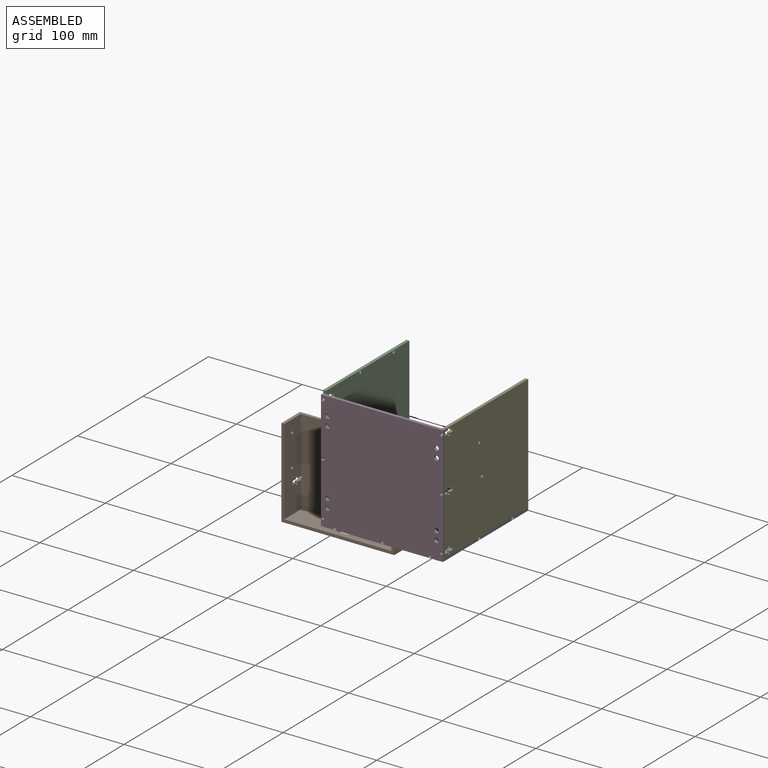
[diagram: assembled view]
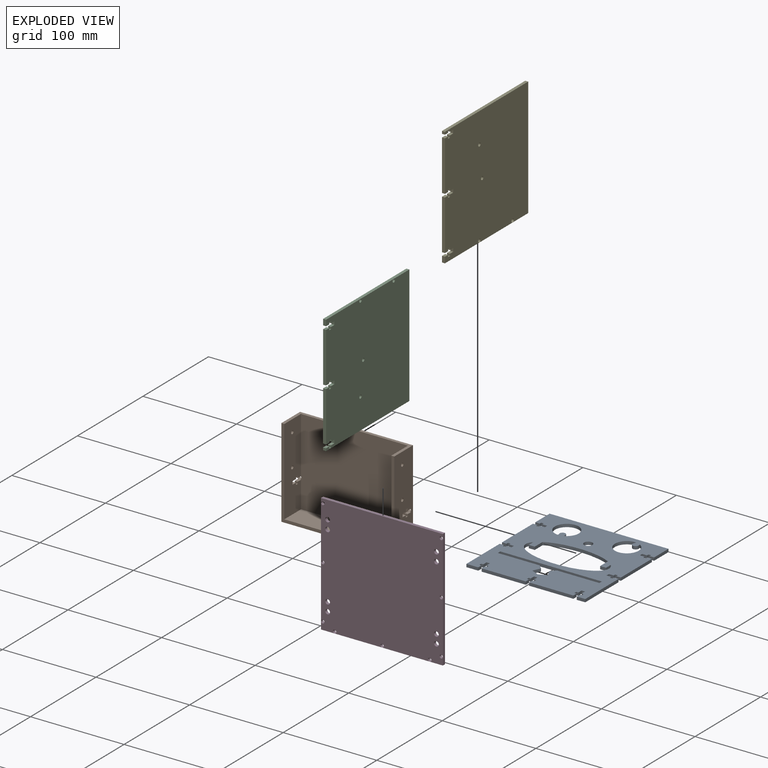
[diagram: exploded view]
GUIDED TOUR — MATED ASSEMBLY WITH SUBASSEMBLIES (Onshape document f5c955dc423d630a37467125, AutoMate assembly f5c955dc423d630a37467125_b046f50d886893bcf47895f5_0e2b2fad7b4f0885c0d2d234_default)

This assembly has 8 component occurrences arranged in 5 top-level units: 4 individual components plus 1 subassembly (S0). The tour has two levels: first the top level, where each subassembly is treated as one rigid unit; then each subassembly is toured internally in its own section (nesting deeper than one subassembly level is flattened into its subassembly's section).

Components are labeled P0..P7 across the whole record; subassembly units are labeled S0..S0. A mate is a constraint between two units; its type names the relative motion it leaves free:
  PLANAR — leaves sliding in the plane through the listed point (normal = the listed direction) and rotation about that normal free.
Axis/direction vectors are unit vectors and 'through' points are millimeter coordinates, both in the assembly's world frame.

TOP-LEVEL MATES (between units; each subassembly's internal mates are listed in its own section)
  1. PLANAR "Planar 6": P6 <-> P4, direction (0.000, 0.000, 1.000) through (39.11, 52.27, 65.40) mm
  2. PLANAR "Planar 4": P6 <-> P4, direction (1.000, 0.000, 0.000) through (40.69, 52.88, 1.94) mm
  3. PLANAR "Planar 2": P0 <-> P4, direction (1.000, 0.000, 0.000) through (40.69, 14.17, -60.01) mm
  4. PLANAR "Planar 7": P3 <-> P0, direction (0.000, 0.000, -1.000) through (-87.89, 52.27, -58.42) mm
  5. PLANAR "Planar 1": P0 <-> P4, direction (0.000, 0.000, -1.000) through (4.37, -11.23, -61.60) mm
  6. PLANAR "Planar 9": P3 <-> P0, direction (0.000, 1.000, 0.000) through (-87.89, 115.77, 5.08) mm
  7. PLANAR "Planar 8": P3 <-> P4, direction (-1.000, 0.000, 0.000) through (-89.48, 52.88, 5.04) mm
  8. PLANAR "Planar 3": P0 <-> P4, direction (0.000, -1.000, 0.000) through (4.37, -11.23, -60.01) mm
  9. PLANAR "Planar 5": P6 <-> P0, direction (0.000, 1.000, 0.000) through (39.11, 115.77, 1.90) mm

TOP-LEVEL ASSEMBLY ORDER
  1. S0 — the base component [order verified]
  2. P3 [order verified]
  3. P4 [order verified]
  4. P6 [order verified]
  5. P0 [order verified]
Order-tag legend:
  [order verified] — this step's position reverses a verified removal order: the component was checked to insert without passing through the ones already placed.

Of the 8 component occurrences, 8 carry the full construction recipe — the FeatureScript program that regenerates the part's solid from scratch; the rest are supplied as boundary geometry only. Each toured unit is shown spotlighted twice — assembled, then exploded with a leader line back to its socket (green = recipe-attached component, orange = geometry-only, blue = subassembly unit; the rest desaturated gray).
NOTE — this tour is split across 2 documents so each fits a 32k-token context. This is document 1: the component sections continue in the remaining 1 document, each repeating the header above.
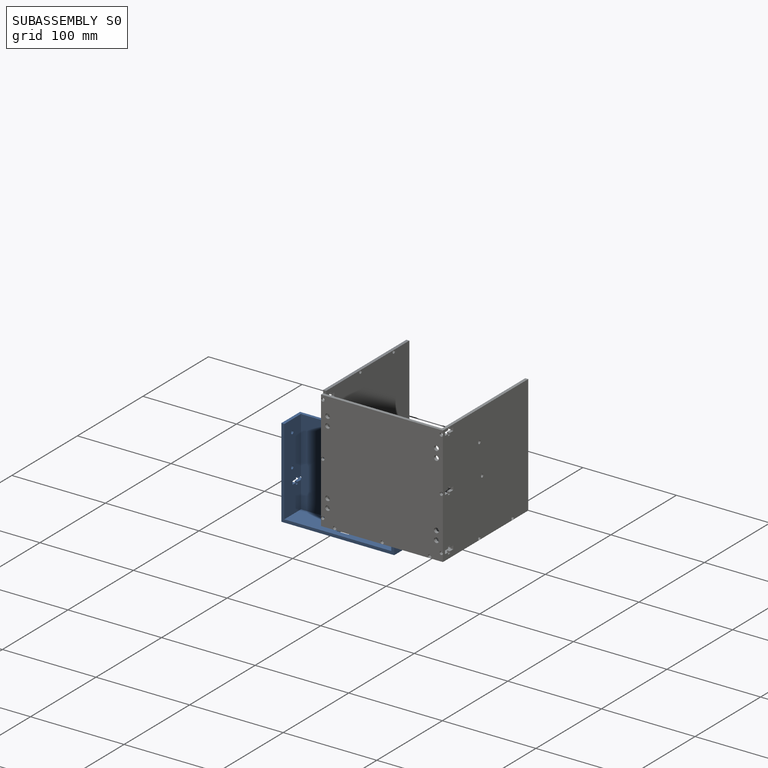
[diagram: subassembly S0 — assembled]
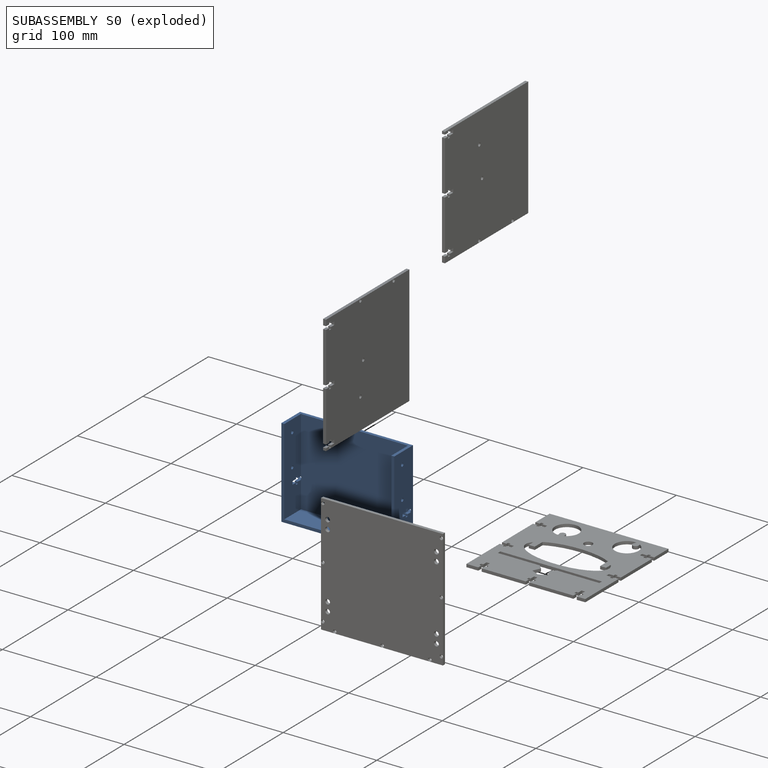
[diagram: subassembly S0 — exploded]
SUBASSEMBLY S0 — 4 components (P1, P2, P5, P7), of which 4 recipe-attached; toured below.
Held by: no mates (free).
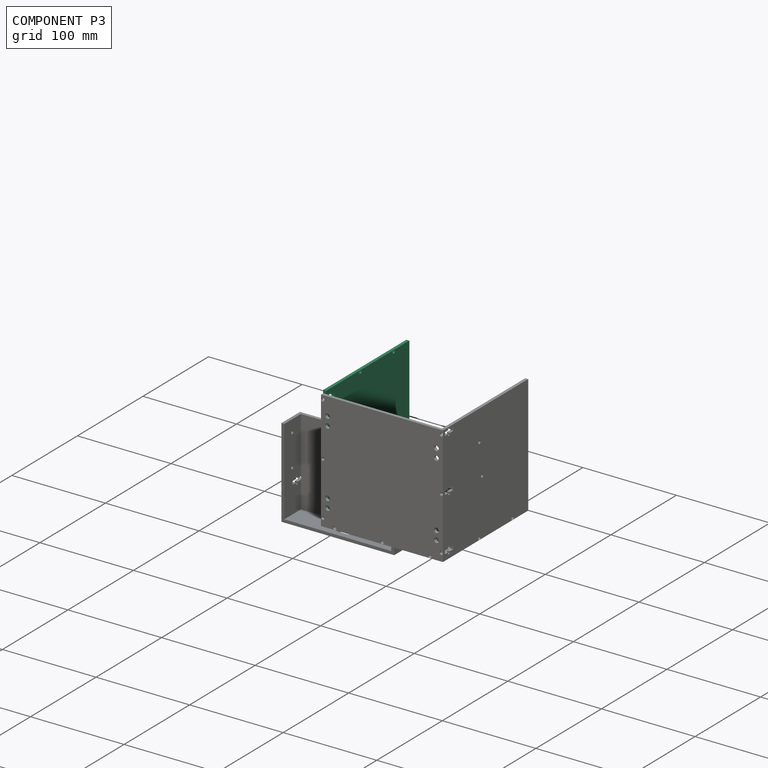
[diagram: component P3 — assembled]
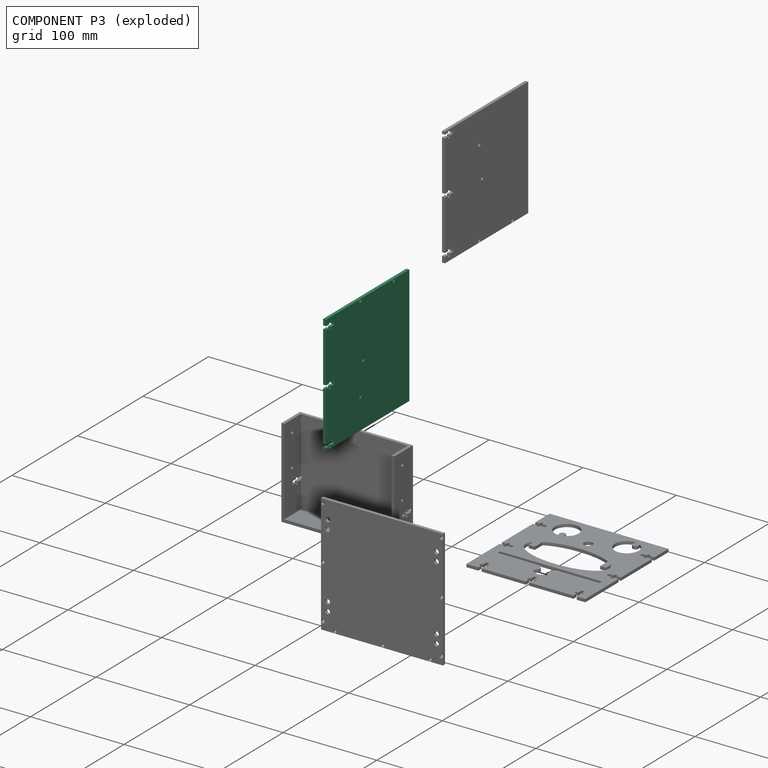
[diagram: component P3 — exploded]
COMPONENT P3 — recipe-attached (CADFS 00168640, mesh-verified: the recipe's output STEP matches this component's geometry to below the mesh-comparison resolution (tessellation chordal tolerance ~0.269 mm)).
Held by: PLANAR mate "Planar 7" to P0; PLANAR mate "Planar 9" to P0; PLANAR mate "Planar 8" to P4.
Construction recipe (FeatureScript — the CAD program that rebuilds this solid; sketch coordinates are in the units given by the * unit suffixes, e.g. mm):

FeatureScript 1511;
import(path : "onshape/std/geometry.fs", version : "1511.0");
import(path : "onshape/std/common.fs", version : "1511.0");
const mm = millimeter;
const VERTEX = EntityType.VERTEX;
const EDGE = EntityType.EDGE;
const FACE = EntityType.FACE;
const BODY = EntityType.BODY;
function v(x, y){return vector(x, y);}
function OD(order){return orderDisambiguation(order);}
function OSD(set){return originalSetDisambiguation(set);}
function TD(topology){return topologyDisambiguation(topology);}
function TDD(query){return trueDependencyDisambiguation(query);}
function sQuery(a, b, c) {return sketchEntityQuery(a, b, c);}

annotation { "Feature Type Name" : "Feature", "Feature Type Description" : "" }
export const myFeature = defineFeature(function(context is Context, id is Id, definition is map)
    precondition{}
    {
        {
            var Q0;
            Q0=qCreatedBy(makeId("Front.planeOp"),FACE);
            var sketch = newSketch(context, id + "F0", { "sketchPlane" : qUnion([Q0])});
            skLineSegment(sketch, "E0.bottom", {"start": v(63.5, -63.5) * mm, "end": v(-63.5, -63.5) * mm});
            skLineSegment(sketch, "E0.top", {"start": v(63.5, 63.5) * mm, "end": v(-63.5, 63.5) * mm});
            skLineSegment(sketch, "E0.left", {"start": v(63.5, -63.5) * mm, "end": v(63.5, 63.5) * mm});
            skLineSegment(sketch, "E0.right", {"start": v(-63.5, -63.5) * mm, "end": v(-63.5, 63.5) * mm});
            skPoint(sketch, "E0.middle", {"position": v(0, 0) * mm});
            skLineSegment(sketch, "E1", {"start": v(-57.15, -63.5) * mm, "end": v(-57.15, -58.66) * mm});
            skLineSegment(sketch, "E2", {"start": v(-57.15, -58.66) * mm, "end": v(-59.34, -58.66) * mm});
            skLineSegment(sketch, "E3", {"start": v(-59.34, -58.66) * mm, "end": v(-59.34, -55.88) * mm});
            skLineSegment(sketch, "E4", {"start": v(-59.34, -55.88) * mm, "end": v(-57.15, -55.88) * mm});
            skLineSegment(sketch, "E5", {"start": v(-57.15, -55.88) * mm, "end": v(-57.15, -50.8) * mm});
            skLineSegment(sketch, "E6", {"start": v(-57.15, -50.8) * mm, "end": v(-53.6, -50.8) * mm});
            skLineSegment(sketch, "E7", {"start": v(-53.6, -50.8) * mm, "end": v(-53.6, -55.88) * mm});
            skLineSegment(sketch, "E8", {"start": v(-53.6, -55.88) * mm, "end": v(-51.4, -55.88) * mm});
            skLineSegment(sketch, "E9", {"start": v(-51.4, -55.88) * mm, "end": v(-51.4, -58.66) * mm});
            skLineSegment(sketch, "E10", {"start": v(-51.4, -58.66) * mm, "end": v(-53.6, -58.66) * mm});
            skLineSegment(sketch, "E11", {"start": v(-53.6, -58.66) * mm, "end": v(-53.6, -63.5) * mm});
            skLineSegment(sketch, "E12.1.0.0", {"start": v(-2.2, -58.66) * mm, "end": v(-2.2, -55.88) * mm});
            skLineSegment(sketch, "E12.1.0.1", {"start": v(5.75, -58.66) * mm, "end": v(3.56, -58.66) * mm});
            skLineSegment(sketch, "E12.1.0.2", {"start": v(-2.2, -55.88) * mm, "end": v(0, -55.88) * mm});
            skLineSegment(sketch, "E12.1.0.3", {"start": v(0, -55.88) * mm, "end": v(0, -50.8) * mm});
            skLineSegment(sketch, "E12.1.0.4", {"start": v(0, -50.8) * mm, "end": v(3.56, -50.8) * mm});
            skLineSegment(sketch, "E12.1.0.5", {"start": v(0, -58.66) * mm, "end": v(-2.2, -58.66) * mm});
            skLineSegment(sketch, "E12.1.0.6", {"start": v(3.56, -50.8) * mm, "end": v(3.56, -55.88) * mm});
            skLineSegment(sketch, "E12.1.0.7", {"start": v(0, -63.5) * mm, "end": v(0, -58.66) * mm});
            skLineSegment(sketch, "E12.1.0.8", {"start": v(3.56, -55.88) * mm, "end": v(5.75, -55.88) * mm});
            skLineSegment(sketch, "E12.1.0.9", {"start": v(5.75, -55.88) * mm, "end": v(5.75, -58.66) * mm});
            skLineSegment(sketch, "E12.1.0.10", {"start": v(3.56, -58.66) * mm, "end": v(3.56, -63.5) * mm});
            skLineSegment(sketch, "E12.2.0.0", {"start": v(54.96, -58.66) * mm, "end": v(54.96, -55.88) * mm});
            skLineSegment(sketch, "E12.2.0.1", {"start": v(62.9, -58.66) * mm, "end": v(60.7, -58.66) * mm});
            skLineSegment(sketch, "E12.2.0.2", {"start": v(54.96, -55.88) * mm, "end": v(57.15, -55.88) * mm});
            skLineSegment(sketch, "E12.2.0.3", {"start": v(57.15, -55.88) * mm, "end": v(57.15, -50.8) * mm});
            skLineSegment(sketch, "E12.2.0.4", {"start": v(57.15, -50.8) * mm, "end": v(60.7, -50.8) * mm});
            skLineSegment(sketch, "E12.2.0.5", {"start": v(57.15, -58.66) * mm, "end": v(54.96, -58.66) * mm});
            skLineSegment(sketch, "E12.2.0.6", {"start": v(60.7, -50.8) * mm, "end": v(60.7, -55.88) * mm});
            skLineSegment(sketch, "E12.2.0.7", {"start": v(57.15, -63.5) * mm, "end": v(57.15, -58.66) * mm});
            skLineSegment(sketch, "E12.2.0.8", {"start": v(60.7, -55.88) * mm, "end": v(62.9, -55.88) * mm});
            skLineSegment(sketch, "E12.2.0.9", {"start": v(62.9, -55.88) * mm, "end": v(62.9, -58.66) * mm});
            skLineSegment(sketch, "E12.2.0.10", {"start": v(60.7, -58.66) * mm, "end": v(60.7, -63.5) * mm});
            skLineSegment(sketch, "E12.direction1", {"start": v(-57.15, -63.5) * mm, "end": v(0, -63.5) * mm, "construction": true});
            skCircle(sketch, "E13", {"center": v(30.99, -10.92) * mm, "radius": 1.78 * mm});
            skCircle(sketch, "E14", {"center": v(-3, -6.75) * mm, "radius": 1.78 * mm});
            skSolve(sketch);
        }
        {
            var Q0;
            Q0=makeQuery(id+"F0.imprint","IMPRINT",FACE,{"disambiguationData":[TD([[makeQuery(id+"F0.imprint","IMPRINT",EDGE,{"derivedFrom":sQuery(id+"F0.wireOp",EDGE,"E0.top")}),1.0]])]});
            extrude(context, id + "F1", {"entities" : qUnion([Q0]), "endBound" : BoundingType.SYMMETRIC, "depth" : 3.17 * mm});
        }
        {
            var Q0;
            Q0=makeQuery(id+"F1.opExtrude","CAP_FACE",FACE,{"disambiguationData":[OSD([sQuery(id+"F0.wireOp",EDGE,"E0.bottom"),sQuery(id+"F0.wireOp",EDGE,"E0.top"),sQuery(id+"F0.wireOp",EDGE,"E0.left"),sQuery(id+"F0.wireOp",EDGE,"E0.right"),sQuery(id+"F0.wireOp",EDGE,"E1"),sQuery(id+"F0.wireOp",EDGE,"E2"),sQuery(id+"F0.wireOp",EDGE,"E3"),sQuery(id+"F0.wireOp",EDGE,"E4"),sQuery(id+"F0.wireOp",EDGE,"E5"),sQuery(id+"F0.wireOp",EDGE,"E6"),sQuery(id+"F0.wireOp",EDGE,"E7"),sQuery(id+"F0.wireOp",EDGE,"E8"),sQuery(id+"F0.wireOp",EDGE,"E9"),sQuery(id+"F0.wireOp",EDGE,"E10"),sQuery(id+"F0.wireOp",EDGE,"E11"),sQuery(id+"F0.wireOp",EDGE,"E12.1.0.0"),sQuery(id+"F0.wireOp",EDGE,"E12.1.0.1"),sQuery(id+"F0.wireOp",EDGE,"E12.1.0.2"),sQuery(id+"F0.wireOp",EDGE,"E12.1.0.3"),sQuery(id+"F0.wireOp",EDGE,"E12.1.0.4"),sQuery(id+"F0.wireOp",EDGE,"E12.1.0.5"),sQuery(id+"F0.wireOp",EDGE,"E12.1.0.6"),sQuery(id+"F0.wireOp",EDGE,"E12.1.0.7"),sQuery(id+"F0.wireOp",EDGE,"E12.1.0.8"),sQuery(id+"F0.wireOp",EDGE,"E12.1.0.9"),sQuery(id+"F0.wireOp",EDGE,"E12.1.0.10"),sQuery(id+"F0.wireOp",EDGE,"E12.2.0.0"),sQuery(id+"F0.wireOp",EDGE,"E12.2.0.1"),sQuery(id+"F0.wireOp",EDGE,"E12.2.0.2"),sQuery(id+"F0.wireOp",EDGE,"E12.2.0.3"),sQuery(id+"F0.wireOp",EDGE,"E12.2.0.4"),sQuery(id+"F0.wireOp",EDGE,"E12.2.0.5"),sQuery(id+"F0.wireOp",EDGE,"E12.2.0.6"),sQuery(id+"F0.wireOp",EDGE,"E12.2.0.7"),sQuery(id+"F0.wireOp",EDGE,"E12.2.0.8"),sQuery(id+"F0.wireOp",EDGE,"E12.2.0.9"),sQuery(id+"F0.wireOp",EDGE,"E12.2.0.10"),sQuery(id+"F0.wireOp",EDGE,"E13"),sQuery(id+"F0.wireOp",EDGE,"E14")])],"isStart":false});
            var sketch = newSketch(context, id + "F2", { "sketchPlane" : qUnion([Q0])});
            skCircle(sketch, "E15", {"center": v(-61.72, -10.92) * mm, "radius": 1.78 * mm});
            skCircle(sketch, "E16.0.1.0", {"center": v(-61.72, 39.88) * mm, "radius": 1.78 * mm});
            skLineSegment(sketch, "E16.direction1", {"start": v(-61.72, -10.92) * mm, "end": v(-36.32, -10.92) * mm, "construction": true});
            skLineSegment(sketch, "E16.direction2", {"start": v(-61.72, -10.92) * mm, "end": v(-61.72, 39.88) * mm, "construction": true});
            skSolve(sketch);
        }
        {
            var Q0;
            Q0=sQuery(id+"F2.wireOp",VERTEX,"E16.0.1.0.center");
            var Q1;
            Q1=sQuery(id+"F2.wireOp",VERTEX,"E15.center");
            var Q2;
            Q2=makeQuery(id+"F1.opExtrude","SWEPT_BODY",BODY,{"disambiguationData":[OSD([sQuery(id+"F0.wireOp",EDGE,"E0.bottom"),sQuery(id+"F0.wireOp",EDGE,"E0.top"),sQuery(id+"F0.wireOp",EDGE,"E0.left"),sQuery(id+"F0.wireOp",EDGE,"E0.right"),sQuery(id+"F0.wireOp",EDGE,"E1"),sQuery(id+"F0.wireOp",EDGE,"E2"),sQuery(id+"F0.wireOp",EDGE,"E3"),sQuery(id+"F0.wireOp",EDGE,"E4"),sQuery(id+"F0.wireOp",EDGE,"E5"),sQuery(id+"F0.wireOp",EDGE,"E6"),sQuery(id+"F0.wireOp",EDGE,"E7"),sQuery(id+"F0.wireOp",EDGE,"E8"),sQuery(id+"F0.wireOp",EDGE,"E9"),sQuery(id+"F0.wireOp",EDGE,"E10"),sQuery(id+"F0.wireOp",EDGE,"E11"),sQuery(id+"F0.wireOp",EDGE,"E12.1.0.0"),sQuery(id+"F0.wireOp",EDGE,"E12.1.0.1"),sQuery(id+"F0.wireOp",EDGE,"E12.1.0.2"),sQuery(id+"F0.wireOp",EDGE,"E12.1.0.3"),sQuery(id+"F0.wireOp",EDGE,"E12.1.0.4"),sQuery(id+"F0.wireOp",EDGE,"E12.1.0.5"),sQuery(id+"F0.wireOp",EDGE,"E12.1.0.6"),sQuery(id+"F0.wireOp",EDGE,"E12.1.0.7"),sQuery(id+"F0.wireOp",EDGE,"E12.1.0.8"),sQuery(id+"F0.wireOp",EDGE,"E12.1.0.9"),sQuery(id+"F0.wireOp",EDGE,"E12.1.0.10"),sQuery(id+"F0.wireOp",EDGE,"E12.2.0.0"),sQuery(id+"F0.wireOp",EDGE,"E12.2.0.1"),sQuery(id+"F0.wireOp",EDGE,"E12.2.0.2"),sQuery(id+"F0.wireOp",EDGE,"E12.2.0.3"),sQuery(id+"F0.wireOp",EDGE,"E12.2.0.4"),sQuery(id+"F0.wireOp",EDGE,"E12.2.0.5"),sQuery(id+"F0.wireOp",EDGE,"E12.2.0.6"),sQuery(id+"F0.wireOp",EDGE,"E12.2.0.7"),sQuery(id+"F0.wireOp",EDGE,"E12.2.0.8"),sQuery(id+"F0.wireOp",EDGE,"E12.2.0.9"),sQuery(id+"F0.wireOp",EDGE,"E12.2.0.10"),sQuery(id+"F0.wireOp",EDGE,"E13"),sQuery(id+"F0.wireOp",EDGE,"E14")])]});
            hole(context, id + "F3", {"style" : HoleStyle.SIMPLE, "endStyle" : HoleEndStyle.THROUGH, "holeDiameter" : 3.56 * mm, "locations" : qUnion([Q0, Q1]), "scope" : qUnion([Q2]), "isTappedThrough" : true});
        }
    });
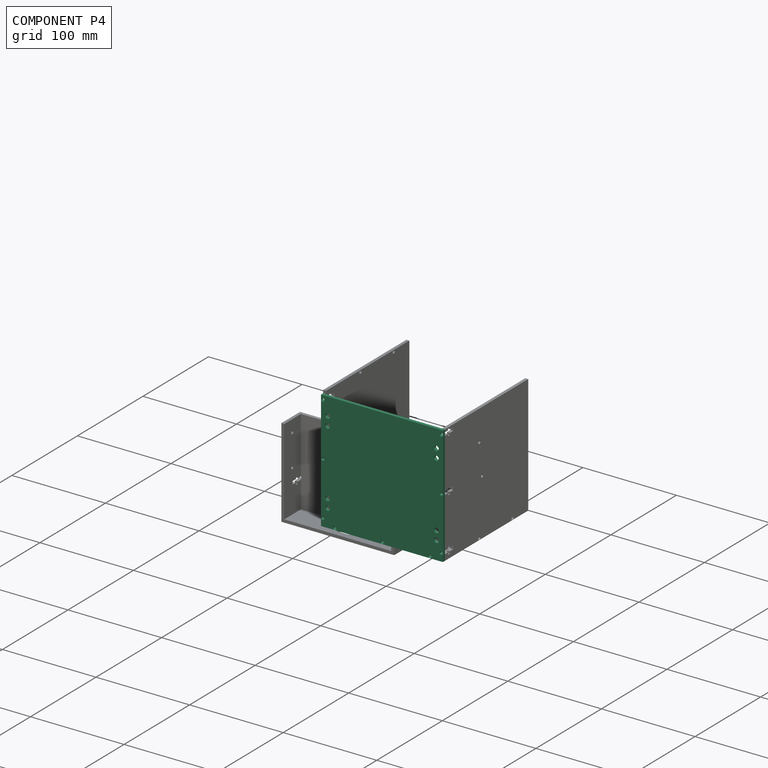
[diagram: component P4 — assembled]
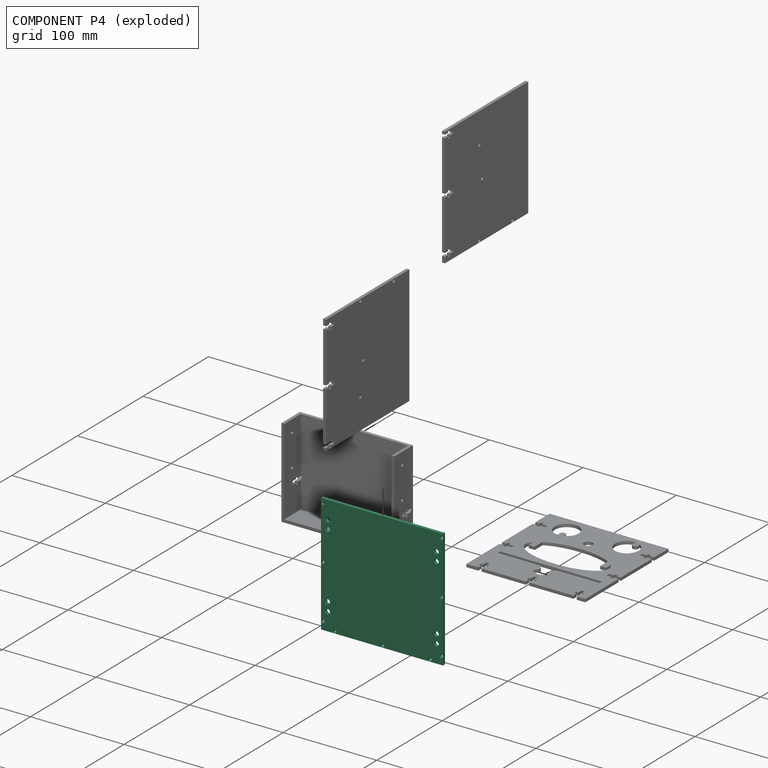
[diagram: component P4 — exploded]
COMPONENT P4 — recipe-attached (CADFS 00168639, mesh-verified: the recipe's output STEP matches this component's geometry to below the mesh-comparison resolution (tessellation chordal tolerance ~0.273 mm)).
Held by: PLANAR mate "Planar 6" to P6; PLANAR mate "Planar 4" to P6; PLANAR mate "Planar 2" to P0; PLANAR mate "Planar 1" to P0; PLANAR mate "Planar 8" to P3; PLANAR mate "Planar 3" to P0.
Construction recipe (FeatureScript — the CAD program that rebuilds this solid; sketch coordinates are in the units given by the * unit suffixes, e.g. mm):

FeatureScript 1511;
import(path : "onshape/std/geometry.fs", version : "1511.0");
import(path : "onshape/std/common.fs", version : "1511.0");
const mm = millimeter;
const VERTEX = EntityType.VERTEX;
const EDGE = EntityType.EDGE;
const FACE = EntityType.FACE;
const BODY = EntityType.BODY;
function v(x, y){return vector(x, y);}
function OD(order){return orderDisambiguation(order);}
function OSD(set){return originalSetDisambiguation(set);}
function TD(topology){return topologyDisambiguation(topology);}
function TDD(query){return trueDependencyDisambiguation(query);}
function sQuery(a, b, c) {return sketchEntityQuery(a, b, c);}

annotation { "Feature Type Name" : "Feature", "Feature Type Description" : "" }
export const myFeature = defineFeature(function(context is Context, id is Id, definition is map)
    precondition{}
    {
        {
            var Q0;
            Q0=qCreatedBy(makeId("Front.planeOp"),FACE);
            var sketch = newSketch(context, id + "F0", { "sketchPlane" : qUnion([Q0])});
            skLineSegment(sketch, "E0.bottom", {"start": v(65.09, -63.5) * mm, "end": v(-65.09, -63.5) * mm});
            skLineSegment(sketch, "E0.top", {"start": v(65.09, 63.5) * mm, "end": v(-65.09, 63.5) * mm});
            skLineSegment(sketch, "E0.left", {"start": v(65.09, -63.5) * mm, "end": v(65.09, 63.5) * mm});
            skLineSegment(sketch, "E0.right", {"start": v(-65.09, -63.5) * mm, "end": v(-65.09, 63.5) * mm});
            skPoint(sketch, "E0.middle", {"position": v(0, 0) * mm});
            skCircle(sketch, "E1", {"center": v(-58.1, 34.92) * mm, "radius": 2.54 * mm});
            skCircle(sketch, "E2", {"center": v(-58.1, 44.45) * mm, "radius": 2.54 * mm});
            skCircle(sketch, "E3.MirrorC", {"center": v(-58.1, -34.92) * mm, "radius": 2.54 * mm});
            skCircle(sketch, "E4.MirrorC", {"center": v(-58.1, -44.45) * mm, "radius": 2.54 * mm});
            skCircle(sketch, "E5.MirrorC", {"center": v(58.1, 44.45) * mm, "radius": 2.54 * mm});
            skCircle(sketch, "E6.MirrorC", {"center": v(58.1, 34.92) * mm, "radius": 2.54 * mm});
            skCircle(sketch, "E7.MirrorC", {"center": v(58.1, -34.92) * mm, "radius": 2.54 * mm});
            skCircle(sketch, "E8.MirrorC", {"center": v(58.1, -44.45) * mm, "radius": 2.54 * mm});
            skSolve(sketch);
        }
        {
            var Q0;
            {var subQ3=sQuery(id+"F0.wireOp",EDGE,"E0.top");Q0=makeQuery(id+"F0.imprint","IMPRINT",FACE,{"disambiguationData":[TD([[makeQuery(id+"F0.imprint","IMPRINT",EDGE,{"derivedFrom":subQ3}),1.0]])]});}
            extrude(context, id + "F1", {"entities" : qUnion([Q0]), "endBound" : BoundingType.SYMMETRIC, "depth" : 3.17 * mm});
        }
        {
            var Q0;
            Q0=makeQuery(id+"F1.opExtrude","CAP_FACE",FACE,{"disambiguationData":[OSD([sQuery(id+"F0.wireOp",EDGE,"E0.bottom"),sQuery(id+"F0.wireOp",EDGE,"E0.top"),sQuery(id+"F0.wireOp",EDGE,"E0.left"),sQuery(id+"F0.wireOp",EDGE,"E0.right"),sQuery(id+"F0.wireOp",EDGE,"E1"),sQuery(id+"F0.wireOp",EDGE,"E2"),sQuery(id+"F0.wireOp",EDGE,"E3.MirrorC"),sQuery(id+"F0.wireOp",EDGE,"E4.MirrorC"),sQuery(id+"F0.wireOp",EDGE,"E5.MirrorC"),sQuery(id+"F0.wireOp",EDGE,"E6.MirrorC"),sQuery(id+"F0.wireOp",EDGE,"E7.MirrorC"),sQuery(id+"F0.wireOp",EDGE,"E8.MirrorC")])],"isStart":false});
            var sketch = newSketch(context, id + "F2", { "sketchPlane" : qUnion([Q0])});
            skCircle(sketch, "E9", {"center": v(-63.3, -55.37) * mm, "radius": 1.78 * mm});
            skCircle(sketch, "E10.0.1.0", {"center": v(-63.3, 1.78) * mm, "radius": 1.78 * mm});
            skCircle(sketch, "E10.0.2.0", {"center": v(-63.3, 58.93) * mm, "radius": 1.78 * mm});
            skLineSegment(sketch, "E10.direction1", {"start": v(-63.3, -55.37) * mm, "end": v(-36.32, -55.37) * mm, "construction": true});
            skLineSegment(sketch, "E10.direction2", {"start": v(-63.3, -55.37) * mm, "end": v(-63.3, 1.78) * mm, "construction": true});
            skCircle(sketch, "E11.MirrorC", {"center": v(63.3, -55.37) * mm, "radius": 1.78 * mm});
            skCircle(sketch, "E12.MirrorC", {"center": v(63.3, 1.78) * mm, "radius": 1.78 * mm});
            skCircle(sketch, "E13.MirrorC", {"center": v(63.3, 58.93) * mm, "radius": 1.78 * mm});
            skCircle(sketch, "E14", {"center": v(-50.6, -61.72) * mm, "radius": 1.78 * mm});
            skCircle(sketch, "E15.1.0.0", {"center": v(0.2, -61.72) * mm, "radius": 1.78 * mm});
            skCircle(sketch, "E15.2.0.0", {"center": v(51, -61.72) * mm, "radius": 1.78 * mm});
            skLineSegment(sketch, "E15.direction1", {"start": v(-50.6, -61.72) * mm, "end": v(0.2, -61.72) * mm, "construction": true});
            skSolve(sketch);
        }
        {
            var Q0;
            Q0=sQuery(id+"F2.wireOp",VERTEX,"E10.0.2.0.center");
            var Q1;
            Q1=sQuery(id+"F2.wireOp",VERTEX,"E10.direction2.end");
            var Q2;
            Q2=sQuery(id+"F2.wireOp",VERTEX,"E9.center");
            var Q3;
            Q3=sQuery(id+"F2.wireOp",VERTEX,"E15.direction1.start");
            var Q4;
            Q4=sQuery(id+"F2.wireOp",VERTEX,"E15.direction1.end");
            var Q5;
            Q5=sQuery(id+"F2.wireOp",VERTEX,"E15.2.0.0.center");
            var Q6;
            Q6=sQuery(id+"F2.wireOp",VERTEX,"E11.MirrorC.center");
            var Q7;
            Q7=sQuery(id+"F2.wireOp",VERTEX,"E12.MirrorC.center");
            var Q8;
            Q8=sQuery(id+"F2.wireOp",VERTEX,"E13.MirrorC.center");
            var Q9;
            Q9=makeQuery(id+"F1.opExtrude","SWEPT_BODY",BODY,{"disambiguationData":[OSD([sQuery(id+"F0.wireOp",EDGE,"E0.bottom"),sQuery(id+"F0.wireOp",EDGE,"E0.top"),sQuery(id+"F0.wireOp",EDGE,"E0.left"),sQuery(id+"F0.wireOp",EDGE,"E0.right"),sQuery(id+"F0.wireOp",EDGE,"E1"),sQuery(id+"F0.wireOp",EDGE,"E2"),sQuery(id+"F0.wireOp",EDGE,"E3.MirrorC"),sQuery(id+"F0.wireOp",EDGE,"E4.MirrorC"),sQuery(id+"F0.wireOp",EDGE,"E5.MirrorC"),sQuery(id+"F0.wireOp",EDGE,"E6.MirrorC"),sQuery(id+"F0.wireOp",EDGE,"E7.MirrorC"),sQuery(id+"F0.wireOp",EDGE,"E8.MirrorC")])]});
            hole(context, id + "F3", {"style" : HoleStyle.SIMPLE, "endStyle" : HoleEndStyle.THROUGH, "holeDiameter" : 3.56 * mm, "locations" : qUnion([Q0, Q1, Q2, Q3, Q4, Q5, Q6, Q7, Q8]), "scope" : qUnion([Q9]), "isTappedThrough" : true});
        }
    });
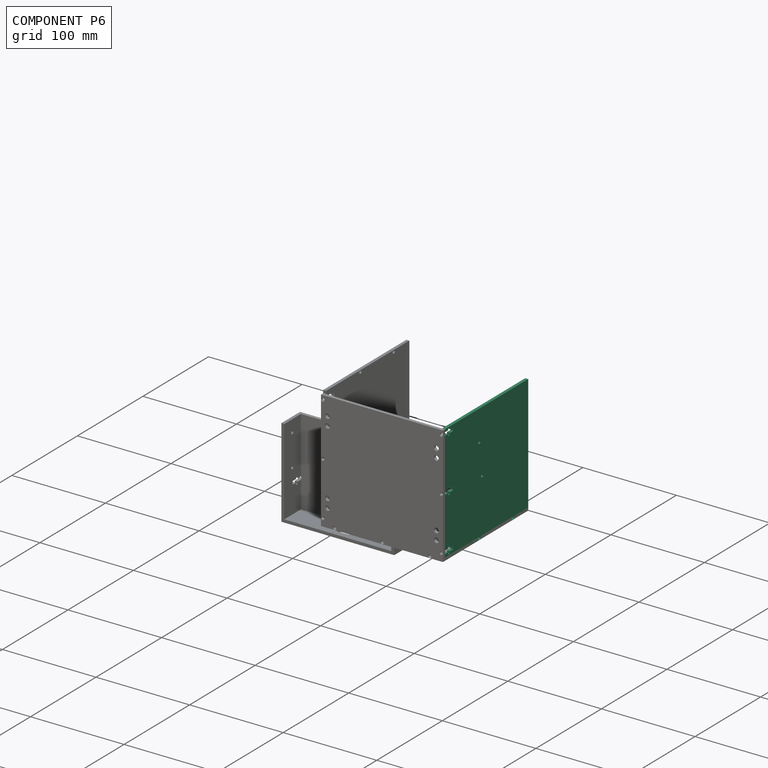
[diagram: component P6 — assembled]
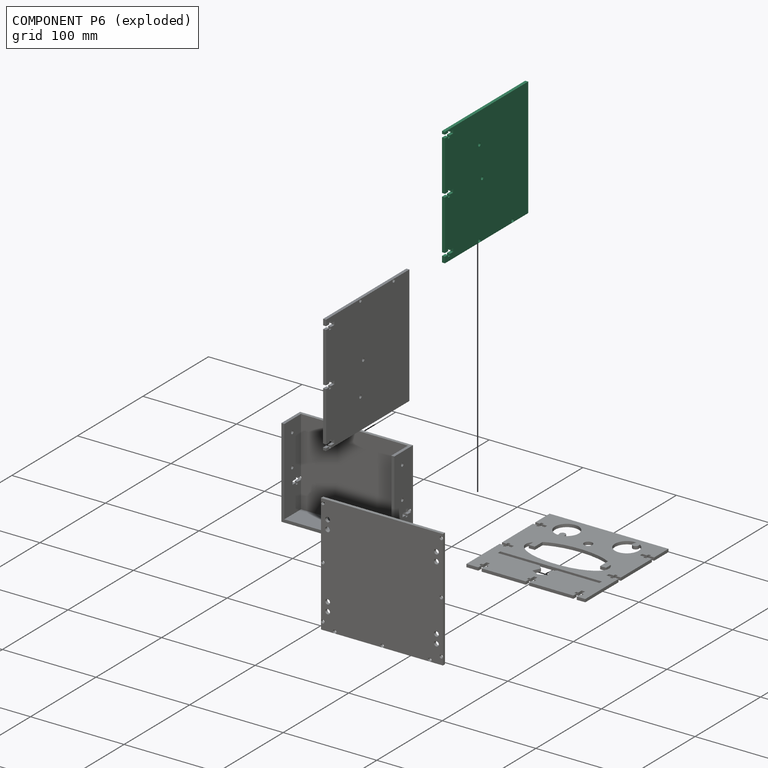
[diagram: component P6 — exploded]
COMPONENT P6 — same part as P3 (CADFS 00168640); its construction recipe is shown at P3.
Held by: PLANAR mate "Planar 6" to P4; PLANAR mate "Planar 4" to P4; PLANAR mate "Planar 5" to P0.
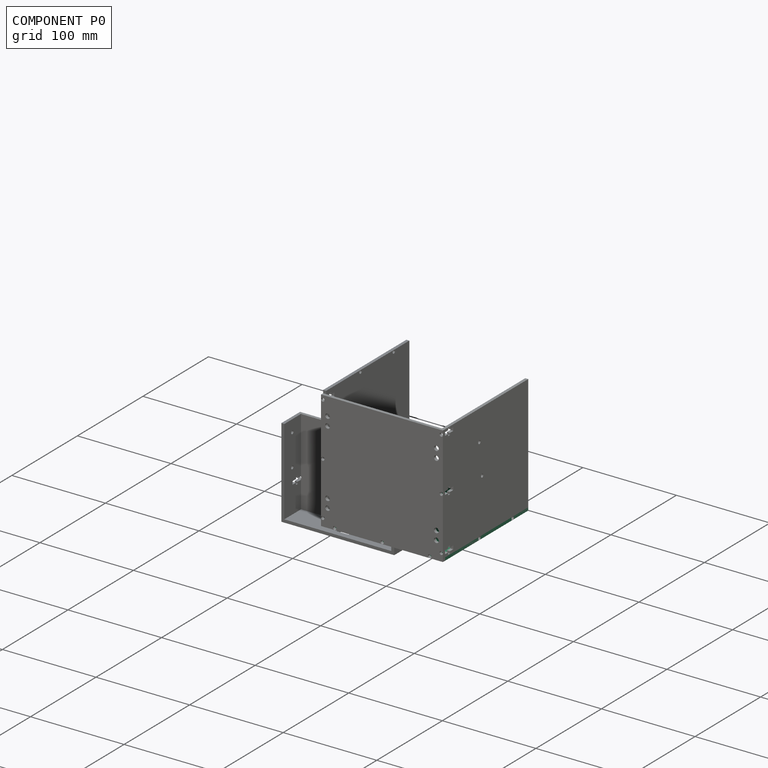
[diagram: component P0 — assembled]
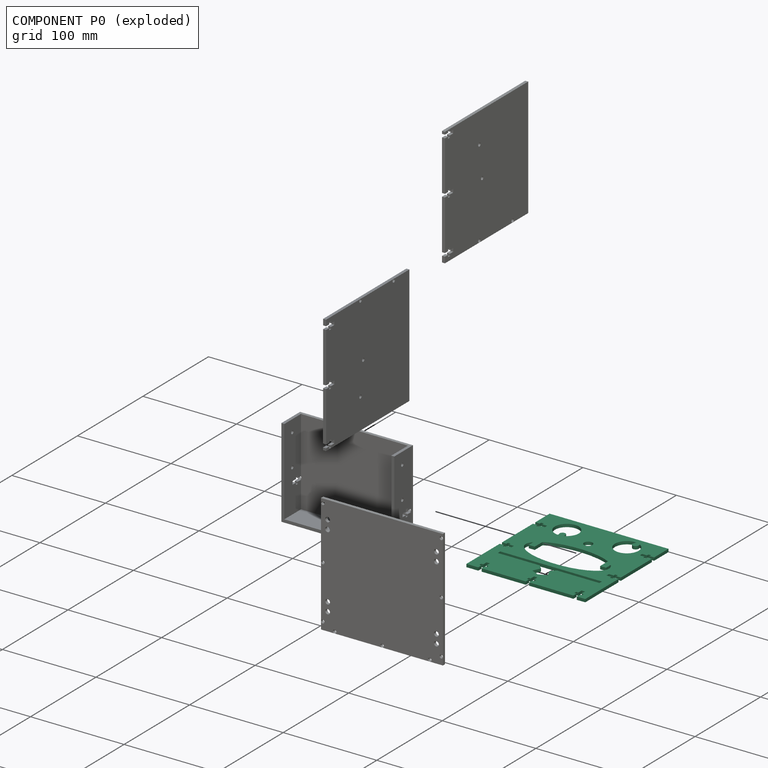
[diagram: component P0 — exploded]
COMPONENT P0 — recipe-attached (CADFS 00168641, mesh-verified: the recipe's output STEP matches this component's geometry to below the mesh-comparison resolution (tessellation chordal tolerance ~0.269 mm)).
Held by: PLANAR mate "Planar 2" to P4; PLANAR mate "Planar 7" to P3; PLANAR mate "Planar 1" to P4; PLANAR mate "Planar 9" to P3; PLANAR mate "Planar 3" to P4; PLANAR mate "Planar 5" to P6.
Construction recipe (FeatureScript — the CAD program that rebuilds this solid; sketch coordinates are in the units given by the * unit suffixes, e.g. mm):

FeatureScript 1511;
import(path : "onshape/std/geometry.fs", version : "1511.0");
import(path : "onshape/std/common.fs", version : "1511.0");
const mm = millimeter;
const VERTEX = EntityType.VERTEX;
const EDGE = EntityType.EDGE;
const FACE = EntityType.FACE;
const BODY = EntityType.BODY;
function v(x, y){return vector(x, y);}
function OD(order){return orderDisambiguation(order);}
function OSD(set){return originalSetDisambiguation(set);}
function TD(topology){return topologyDisambiguation(topology);}
function TDD(query){return trueDependencyDisambiguation(query);}
function sQuery(a, b, c) {return sketchEntityQuery(a, b, c);}

annotation { "Feature Type Name" : "Feature", "Feature Type Description" : "" }
export const myFeature = defineFeature(function(context is Context, id is Id, definition is map)
    precondition{}
    {
        {
            var Q0;
            Q0=qCreatedBy(makeId("Front.planeOp"),FACE);
            var sketch = newSketch(context, id + "F0", { "sketchPlane" : qUnion([Q0])});
            skLineSegment(sketch, "E0.bottom", {"start": v(63.5, -63.5) * mm, "end": v(-63.5, -63.5) * mm});
            skLineSegment(sketch, "E0.top", {"start": v(63.5, 63.5) * mm, "end": v(-63.5, 63.5) * mm});
            skLineSegment(sketch, "E0.left", {"start": v(63.5, -63.5) * mm, "end": v(63.5, 63.5) * mm});
            skLineSegment(sketch, "E0.right", {"start": v(-63.5, -63.5) * mm, "end": v(-63.5, 63.5) * mm});
            skPoint(sketch, "E0.middle", {"position": v(0, 0) * mm});
            skEllipse(sketch, "E1", {"center": v(0, 0) * mm, "majorRadius": 44.45 * mm, "minorRadius": 19.05 * mm, "majorAxis": v(1, 0)});
            skLineSegment(sketch, "E2", {"start": v(-34.93, 11.78) * mm, "end": v(-34.93, 0) * mm});
            skLineSegment(sketch, "E3", {"start": v(-41.28, 0) * mm, "end": v(-34.93, 0) * mm});
            skLineSegment(sketch, "E4", {"start": v(-41.28, 0) * mm, "end": v(-41.28, 7.07) * mm});
            skLineSegment(sketch, "E5", {"start": v(41.28, 7.07) * mm, "end": v(41.28, 0) * mm});
            skLineSegment(sketch, "E6", {"start": v(34.93, 0) * mm, "end": v(41.28, 0) * mm});
            skLineSegment(sketch, "E7", {"start": v(34.93, 0) * mm, "end": v(34.93, 11.78) * mm});
            skCircle(sketch, "E8", {"center": v(0, 31.75) * mm, "radius": 4.43 * mm});
            skCircle(sketch, "E9", {"center": v(-31.75, 44.45) * mm, "radius": 12.7 * mm});
            skArc(sketch, "E10", {"start": v(-26.78, 34.27) * mm, "mid": v(-30.31, 38.26) * mm, "end": v(-32.52, 33.41) * mm});
            skCircle(sketch, "E11", {"center": v(31.75, 45.26) * mm, "radius": 12.7 * mm});
            skArc(sketch, "E12", {"start": v(32.04, 55.22) * mm, "mid": v(34.52, 50.92) * mm, "end": v(38.17, 54.28) * mm});
            skLineSegment(sketch, "E13", {"start": v(32.04, 55.22) * mm, "end": v(33.09, 57.88) * mm});
            skLineSegment(sketch, "E14", {"start": v(38.17, 54.28) * mm, "end": v(38.03, 56.3) * mm});
            skLineSegment(sketch, "E15", {"start": v(-32.52, 33.41) * mm, "end": v(-32.52, 31.77) * mm});
            skLineSegment(sketch, "E16", {"start": v(-26.78, 34.27) * mm, "end": v(-26.78, 32.76) * mm});
            skLineSegment(sketch, "E17", {"start": v(-50.8, -58.66) * mm, "end": v(-50.8, -63.5) * mm});
            skLineSegment(sketch, "E18", {"start": v(-50.8, -58.66) * mm, "end": v(-53, -58.66) * mm});
            skLineSegment(sketch, "E19", {"start": v(-53, -58.66) * mm, "end": v(-53, -55.88) * mm});
            skLineSegment(sketch, "E20", {"start": v(-53, -55.88) * mm, "end": v(-50.8, -55.88) * mm});
            skLineSegment(sketch, "E21", {"start": v(-50.8, -55.88) * mm, "end": v(-50.8, -50.8) * mm});
            skLineSegment(sketch, "E22", {"start": v(-50.8, -50.8) * mm, "end": v(-47.24, -50.8) * mm});
            skLineSegment(sketch, "E23", {"start": v(-47.24, -50.8) * mm, "end": v(-47.24, -55.88) * mm});
            skLineSegment(sketch, "E24", {"start": v(-47.24, -55.88) * mm, "end": v(-45.05, -55.88) * mm});
            skLineSegment(sketch, "E25", {"start": v(-45.05, -55.88) * mm, "end": v(-45.05, -58.66) * mm});
            skLineSegment(sketch, "E26", {"start": v(-45.05, -58.66) * mm, "end": v(-47.24, -58.66) * mm});
            skLineSegment(sketch, "E27", {"start": v(-47.24, -58.66) * mm, "end": v(-47.24, -63.5) * mm});
            skLineSegment(sketch, "E28.1.0.0", {"start": v(0, -58.66) * mm, "end": v(0, -63.5) * mm});
            skLineSegment(sketch, "E28.1.0.1", {"start": v(3.56, -58.66) * mm, "end": v(3.56, -63.5) * mm});
            skLineSegment(sketch, "E28.1.0.2", {"start": v(3.56, -50.8) * mm, "end": v(3.56, -55.88) * mm});
            skLineSegment(sketch, "E28.1.0.3", {"start": v(-2.2, -55.88) * mm, "end": v(0, -55.88) * mm});
            skLineSegment(sketch, "E28.1.0.4", {"start": v(0, -55.88) * mm, "end": v(0, -50.8) * mm});
            skLineSegment(sketch, "E28.1.0.5", {"start": v(0, -58.66) * mm, "end": v(-2.2, -58.66) * mm});
            skLineSegment(sketch, "E28.1.0.6", {"start": v(0, -50.8) * mm, "end": v(3.56, -50.8) * mm});
            skLineSegment(sketch, "E28.1.0.7", {"start": v(-2.2, -58.66) * mm, "end": v(-2.2, -55.88) * mm});
            skLineSegment(sketch, "E28.1.0.8", {"start": v(3.56, -55.88) * mm, "end": v(5.75, -55.88) * mm});
            skLineSegment(sketch, "E28.1.0.9", {"start": v(5.75, -55.88) * mm, "end": v(5.75, -58.66) * mm});
            skLineSegment(sketch, "E28.1.0.10", {"start": v(5.75, -58.66) * mm, "end": v(3.56, -58.66) * mm});
            skLineSegment(sketch, "E28.2.0.0", {"start": v(50.8, -58.66) * mm, "end": v(50.8, -63.5) * mm});
            skLineSegment(sketch, "E28.2.0.1", {"start": v(54.36, -58.66) * mm, "end": v(54.36, -63.5) * mm});
            skLineSegment(sketch, "E28.2.0.2", {"start": v(54.36, -50.8) * mm, "end": v(54.36, -55.88) * mm});
            skLineSegment(sketch, "E28.2.0.3", {"start": v(48.6, -55.88) * mm, "end": v(50.8, -55.88) * mm});
            skLineSegment(sketch, "E28.2.0.4", {"start": v(50.8, -55.88) * mm, "end": v(50.8, -50.8) * mm});
            skLineSegment(sketch, "E28.2.0.5", {"start": v(50.8, -58.66) * mm, "end": v(48.6, -58.66) * mm});
            skLineSegment(sketch, "E28.2.0.6", {"start": v(50.8, -50.8) * mm, "end": v(54.36, -50.8) * mm});
            skLineSegment(sketch, "E28.2.0.7", {"start": v(48.6, -58.66) * mm, "end": v(48.6, -55.88) * mm});
            skLineSegment(sketch, "E28.2.0.8", {"start": v(54.36, -55.88) * mm, "end": v(56.55, -55.88) * mm});
            skLineSegment(sketch, "E28.2.0.9", {"start": v(56.55, -55.88) * mm, "end": v(56.55, -58.66) * mm});
            skLineSegment(sketch, "E28.2.0.10", {"start": v(56.55, -58.66) * mm, "end": v(54.36, -58.66) * mm});
            skLineSegment(sketch, "E28.direction1", {"start": v(-50.8, -63.5) * mm, "end": v(0, -63.5) * mm, "construction": true});
            skLineSegment(sketch, "E29", {"start": v(-63.5, -12.7) * mm, "end": v(-58.66, -12.7) * mm});
            skLineSegment(sketch, "E30", {"start": v(-58.66, -12.7) * mm, "end": v(-58.66, -14.9) * mm});
            skLineSegment(sketch, "E31", {"start": v(-58.66, -14.9) * mm, "end": v(-55.88, -14.9) * mm});
            skLineSegment(sketch, "E32", {"start": v(-55.88, -14.9) * mm, "end": v(-55.88, -12.7) * mm});
            skLineSegment(sketch, "E33", {"start": v(-55.88, -12.7) * mm, "end": v(-50.8, -12.7) * mm});
            skLineSegment(sketch, "E34", {"start": v(-50.8, -12.7) * mm, "end": v(-50.8, -9.14) * mm});
            skLineSegment(sketch, "E35", {"start": v(-50.8, -9.14) * mm, "end": v(-55.88, -9.14) * mm});
            skLineSegment(sketch, "E36", {"start": v(-55.88, -9.14) * mm, "end": v(-55.88, -6.95) * mm});
            skLineSegment(sketch, "E37", {"start": v(-55.88, -6.95) * mm, "end": v(-58.66, -6.95) * mm});
            skLineSegment(sketch, "E38", {"start": v(-58.66, -6.95) * mm, "end": v(-58.66, -9.14) * mm});
            skLineSegment(sketch, "E39", {"start": v(-58.66, -9.14) * mm, "end": v(-63.5, -9.14) * mm});
            skLineSegment(sketch, "E40.0.1.0", {"start": v(-58.66, 41.66) * mm, "end": v(-63.5, 41.66) * mm});
            skLineSegment(sketch, "E40.0.1.1", {"start": v(-50.8, 41.66) * mm, "end": v(-55.88, 41.66) * mm});
            skLineSegment(sketch, "E40.0.1.2", {"start": v(-50.8, 38.1) * mm, "end": v(-50.8, 41.66) * mm});
            skLineSegment(sketch, "E40.0.1.3", {"start": v(-63.5, 38.1) * mm, "end": v(-58.66, 38.1) * mm});
            skLineSegment(sketch, "E40.0.1.4", {"start": v(-55.88, 38.1) * mm, "end": v(-50.8, 38.1) * mm});
            skLineSegment(sketch, "E40.0.1.5", {"start": v(-55.88, 43.85) * mm, "end": v(-58.66, 43.85) * mm});
            skLineSegment(sketch, "E40.0.1.6", {"start": v(-55.88, 41.66) * mm, "end": v(-55.88, 43.85) * mm});
            skLineSegment(sketch, "E40.0.1.7", {"start": v(-58.66, 38.1) * mm, "end": v(-58.66, 35.9) * mm});
            skLineSegment(sketch, "E40.0.1.8", {"start": v(-58.66, 35.9) * mm, "end": v(-55.88, 35.9) * mm});
            skLineSegment(sketch, "E40.0.1.9", {"start": v(-55.88, 35.9) * mm, "end": v(-55.88, 38.1) * mm});
            skLineSegment(sketch, "E40.0.1.10", {"start": v(-58.66, 43.85) * mm, "end": v(-58.66, 41.66) * mm});
            skLineSegment(sketch, "E40.direction1", {"start": v(-63.5, -12.7) * mm, "end": v(-38.1, -12.7) * mm, "construction": true});
            skLineSegment(sketch, "E40.direction2", {"start": v(-63.5, -12.7) * mm, "end": v(-63.5, 38.1) * mm, "construction": true});
            skLineSegment(sketch, "E41.MirrorCS", {"start": v(55.88, -14.9) * mm, "end": v(55.88, -12.7) * mm});
            skLineSegment(sketch, "E42.MirrorCS", {"start": v(58.66, -14.9) * mm, "end": v(55.88, -14.9) * mm});
            skLineSegment(sketch, "E43.MirrorCS", {"start": v(58.66, -12.7) * mm, "end": v(58.66, -14.9) * mm});
            skLineSegment(sketch, "E44.MirrorCS", {"start": v(63.5, -12.7) * mm, "end": v(58.66, -12.7) * mm});
            skLineSegment(sketch, "E45.MirrorCS", {"start": v(58.66, 35.9) * mm, "end": v(55.88, 35.9) * mm});
            skLineSegment(sketch, "E46.MirrorCS", {"start": v(58.66, 38.1) * mm, "end": v(58.66, 35.9) * mm});
            skLineSegment(sketch, "E47.MirrorCS", {"start": v(58.66, -6.95) * mm, "end": v(58.66, -9.14) * mm});
            skLineSegment(sketch, "E48.MirrorCS", {"start": v(55.88, 43.85) * mm, "end": v(58.66, 43.85) * mm});
            skLineSegment(sketch, "E49.MirrorCS", {"start": v(55.88, 35.9) * mm, "end": v(55.88, 38.1) * mm});
            skLineSegment(sketch, "E50.MirrorCS", {"start": v(58.66, -9.14) * mm, "end": v(63.5, -9.14) * mm});
            skLineSegment(sketch, "E51.MirrorCS", {"start": v(55.88, -6.95) * mm, "end": v(58.66, -6.95) * mm});
            skLineSegment(sketch, "E52.MirrorCS", {"start": v(50.8, -12.7) * mm, "end": v(50.8, -9.14) * mm});
            skLineSegment(sketch, "E53.MirrorCS", {"start": v(55.88, -9.14) * mm, "end": v(55.88, -6.95) * mm});
            skLineSegment(sketch, "E54.MirrorCS", {"start": v(55.88, -12.7) * mm, "end": v(50.8, -12.7) * mm});
            skLineSegment(sketch, "E55.MirrorCS", {"start": v(55.88, 41.66) * mm, "end": v(55.88, 43.85) * mm});
            skLineSegment(sketch, "E56.MirrorCS", {"start": v(58.66, 43.85) * mm, "end": v(58.66, 41.66) * mm});
            skLineSegment(sketch, "E57.MirrorCS", {"start": v(50.8, 41.66) * mm, "end": v(55.88, 41.66) * mm});
            skLineSegment(sketch, "E58.MirrorCS", {"start": v(58.66, 41.66) * mm, "end": v(63.5, 41.66) * mm});
            skLineSegment(sketch, "E59.MirrorCS", {"start": v(50.8, 38.1) * mm, "end": v(50.8, 41.66) * mm});
            skLineSegment(sketch, "E60.MirrorCS", {"start": v(55.88, 38.1) * mm, "end": v(50.8, 38.1) * mm});
            skLineSegment(sketch, "E61.MirrorCS", {"start": v(63.5, 38.1) * mm, "end": v(58.66, 38.1) * mm});
            skLineSegment(sketch, "E62.MirrorCS", {"start": v(50.8, -9.14) * mm, "end": v(55.88, -9.14) * mm});
            skLineSegment(sketch, "E63.MirrorCS", {"start": v(63.5, -12.7) * mm, "end": v(63.5, 38.1) * mm, "construction": true});
            skSolve(sketch);
        }
        {
            var Q0;
            {var subQ27=sQuery(id+"F0.wireOp",EDGE,"E0.top");Q0=makeQuery(id+"F0.imprint","IMPRINT",FACE,{"disambiguationData":[TD([[makeQuery(id+"F0.imprint","IMPRINT",EDGE,{"derivedFrom":subQ27}),1.0]])]});}
            var Q1;
            Q1=makeQuery(id+"F0.imprint","IMPRINT",FACE,{"disambiguationData":[TD([[makeQuery(id+"F0.imprint","IMPRINT",EDGE,{"derivedFrom":sQuery(id+"F0.wireOp",EDGE,"E12")}),1.0]])]});
            var Q2;
            Q2=makeQuery(id+"F0.imprint","IMPRINT",FACE,{"disambiguationData":[TD([[makeQuery(id+"F0.imprint","IMPRINT",EDGE,{"derivedFrom":sQuery(id+"F0.wireOp",EDGE,"E10")}),1.0]])]});
            var Q3;
            {var subQ0=sQuery(id+"F0.wireOp",EDGE,"E2");Q3=makeQuery(id+"F0.imprint","IMPRINT",FACE,{"disambiguationData":[TD([[makeQuery(id+"F0.imprint","IMPRINT",EDGE,{"derivedFrom":subQ0}),-1.0]])]});}
            var Q4;
            {var subQ0=sQuery(id+"F0.wireOp",EDGE,"E5");Q4=makeQuery(id+"F0.imprint","IMPRINT",FACE,{"disambiguationData":[TD([[makeQuery(id+"F0.imprint","IMPRINT",EDGE,{"derivedFrom":subQ0}),-1.0]])]});}
            extrude(context, id + "F1", {"entities" : qUnion([Q0, Q1, Q2, Q3, Q4]), "endBound" : BoundingType.SYMMETRIC, "depth" : 3.17 * mm});
        }
        {
            var Q0;
            Q0=makeQuery(id+"F1.opExtrude","CAP_FACE",FACE,{"disambiguationData":[OSD([sQuery(id+"F0.wireOp",EDGE,"E0.bottom"),sQuery(id+"F0.wireOp",EDGE,"E0.top"),sQuery(id+"F0.wireOp",EDGE,"E0.left"),sQuery(id+"F0.wireOp",EDGE,"E0.right"),sQuery(id+"F0.wireOp",EDGE,"E1"),sQuery(id+"F0.wireOp",EDGE,"E2"),sQuery(id+"F0.wireOp",EDGE,"E3"),sQuery(id+"F0.wireOp",EDGE,"E4"),sQuery(id+"F0.wireOp",EDGE,"E5"),sQuery(id+"F0.wireOp",EDGE,"E6"),sQuery(id+"F0.wireOp",EDGE,"E7"),sQuery(id+"F0.wireOp",EDGE,"E8"),sQuery(id+"F0.wireOp",EDGE,"E9"),sQuery(id+"F0.wireOp",EDGE,"E10"),sQuery(id+"F0.wireOp",EDGE,"E11"),sQuery(id+"F0.wireOp",EDGE,"E12"),sQuery(id+"F0.wireOp",EDGE,"E13"),sQuery(id+"F0.wireOp",EDGE,"E14"),sQuery(id+"F0.wireOp",EDGE,"E15"),sQuery(id+"F0.wireOp",EDGE,"E16"),sQuery(id+"F0.wireOp",EDGE,"E17"),sQuery(id+"F0.wireOp",EDGE,"E18"),sQuery(id+"F0.wireOp",EDGE,"E19"),sQuery(id+"F0.wireOp",EDGE,"E20"),sQuery(id+"F0.wireOp",EDGE,"E21"),sQuery(id+"F0.wireOp",EDGE,"E22"),sQuery(id+"F0.wireOp",EDGE,"E23"),sQuery(id+"F0.wireOp",EDGE,"E24"),sQuery(id+"F0.wireOp",EDGE,"E25"),sQuery(id+"F0.wireOp",EDGE,"E26"),sQuery(id+"F0.wireOp",EDGE,"E27"),sQuery(id+"F0.wireOp",EDGE,"E28.1.0.0"),sQuery(id+"F0.wireOp",EDGE,"E28.1.0.1"),sQuery(id+"F0.wireOp",EDGE,"E28.1.0.2"),sQuery(id+"F0.wireOp",EDGE,"E28.1.0.3"),sQuery(id+"F0.wireOp",EDGE,"E28.1.0.4"),sQuery(id+"F0.wireOp",EDGE,"E28.1.0.5"),sQuery(id+"F0.wireOp",EDGE,"E28.1.0.6"),sQuery(id+"F0.wireOp",EDGE,"E28.1.0.7"),sQuery(id+"F0.wireOp",EDGE,"E28.1.0.8"),sQuery(id+"F0.wireOp",EDGE,"E28.1.0.9"),sQuery(id+"F0.wireOp",EDGE,"E28.1.0.10"),sQuery(id+"F0.wireOp",EDGE,"E28.2.0.0"),sQuery(id+"F0.wireOp",EDGE,"E28.2.0.1"),sQuery(id+"F0.wireOp",EDGE,"E28.2.0.2"),sQuery(id+"F0.wireOp",EDGE,"E28.2.0.3"),sQuery(id+"F0.wireOp",EDGE,"E28.2.0.4"),sQuery(id+"F0.wireOp",EDGE,"E28.2.0.5"),sQuery(id+"F0.wireOp",EDGE,"E28.2.0.6"),sQuery(id+"F0.wireOp",EDGE,"E28.2.0.7"),sQuery(id+"F0.wireOp",EDGE,"E28.2.0.8"),sQuery(id+"F0.wireOp",EDGE,"E28.2.0.9"),sQuery(id+"F0.wireOp",EDGE,"E28.2.0.10"),sQuery(id+"F0.wireOp",EDGE,"E29"),sQuery(id+"F0.wireOp",EDGE,"E30"),sQuery(id+"F0.wireOp",EDGE,"E31"),sQuery(id+"F0.wireOp",EDGE,"E32"),sQuery(id+"F0.wireOp",EDGE,"E33"),sQuery(id+"F0.wireOp",EDGE,"E34"),sQuery(id+"F0.wireOp",EDGE,"E35"),sQuery(id+"F0.wireOp",EDGE,"E36"),sQuery(id+"F0.wireOp",EDGE,"E37"),sQuery(id+"F0.wireOp",EDGE,"E38"),sQuery(id+"F0.wireOp",EDGE,"E39"),sQuery(id+"F0.wireOp",EDGE,"E40.0.1.0"),sQuery(id+"F0.wireOp",EDGE,"E40.0.1.1"),sQuery(id+"F0.wireOp",EDGE,"E40.0.1.2"),sQuery(id+"F0.wireOp",EDGE,"E40.0.1.3"),sQuery(id+"F0.wireOp",EDGE,"E40.0.1.4"),sQuery(id+"F0.wireOp",EDGE,"E40.0.1.5"),sQuery(id+"F0.wireOp",EDGE,"E40.0.1.6"),sQuery(id+"F0.wireOp",EDGE,"E40.0.1.7"),sQuery(id+"F0.wireOp",EDGE,"E40.0.1.8"),sQuery(id+"F0.wireOp",EDGE,"E40.0.1.9"),sQuery(id+"F0.wireOp",EDGE,"E40.0.1.10"),sQuery(id+"F0.wireOp",EDGE,"E41.MirrorCS"),sQuery(id+"F0.wireOp",EDGE,"E42.MirrorCS"),sQuery(id+"F0.wireOp",EDGE,"E43.MirrorCS"),sQuery(id+"F0.wireOp",EDGE,"E44.MirrorCS"),sQuery(id+"F0.wireOp",EDGE,"E45.MirrorCS"),sQuery(id+"F0.wireOp",EDGE,"E46.MirrorCS"),sQuery(id+"F0.wireOp",EDGE,"E47.MirrorCS"),sQuery(id+"F0.wireOp",EDGE,"E48.MirrorCS"),sQuery(id+"F0.wireOp",EDGE,"E49.MirrorCS"),sQuery(id+"F0.wireOp",EDGE,"E50.MirrorCS"),sQuery(id+"F0.wireOp",EDGE,"E51.MirrorCS"),sQuery(id+"F0.wireOp",EDGE,"E52.MirrorCS"),sQuery(id+"F0.wireOp",EDGE,"E53.MirrorCS"),sQuery(id+"F0.wireOp",EDGE,"E54.MirrorCS"),sQuery(id+"F0.wireOp",EDGE,"E55.MirrorCS"),sQuery(id+"F0.wireOp",EDGE,"E56.MirrorCS"),sQuery(id+"F0.wireOp",EDGE,"E57.MirrorCS"),sQuery(id+"F0.wireOp",EDGE,"E58.MirrorCS"),sQuery(id+"F0.wireOp",EDGE,"E59.MirrorCS"),sQuery(id+"F0.wireOp",EDGE,"E60.MirrorCS"),sQuery(id+"F0.wireOp",EDGE,"E61.MirrorCS"),sQuery(id+"F0.wireOp",EDGE,"E62.MirrorCS")])],"isStart":false});
            var sketch = newSketch(context, id + "F2", { "sketchPlane" : qUnion([Q0])});
            skLineSegment(sketch, "E64", {"start": v(-53.92, -29.21) * mm, "end": v(54.64, -29.21) * mm});
            skLineSegment(sketch, "E65", {"start": v(-9.15, -29.21) * mm, "end": v(0, -38.36) * mm});
            skLineSegment(sketch, "E66", {"start": v(0, -38.36) * mm, "end": v(9.15, -29.21) * mm});
            skLineSegment(sketch, "E67", {"start": v(-4.58, -33.79) * mm, "end": v(-8.2, -41.78) * mm});
            skLineSegment(sketch, "E68", {"start": v(-8.2, -41.78) * mm, "end": v(0, -45.5) * mm});
            skLineSegment(sketch, "E69", {"start": v(0, -45.5) * mm, "end": v(8.2, -41.78) * mm});
            skLineSegment(sketch, "E70", {"start": v(8.2, -41.78) * mm, "end": v(4.58, -33.79) * mm});
            skLineSegment(sketch, "E71", {"start": v(54.64, -29.21) * mm, "end": v(54.64, -25.4) * mm});
            skLineSegment(sketch, "E72", {"start": v(54.64, -25.4) * mm, "end": v(-53.92, -25.4) * mm});
            skLineSegment(sketch, "E73", {"start": v(-53.92, -25.4) * mm, "end": v(-53.92, -29.21) * mm});
            skSolve(sketch);
        }
        {
            var Q0;
            Q0 = qSketchRegion(id + "F2", true);
            var Q1;
            Q1=sQuery(id+"F2.wireOp",EDGE,"E65");
            var Q2;
            Q2=sQuery(id+"F2.wireOp",EDGE,"E64");
            var Q3;
            Q3=sQuery(id+"F2.wireOp",EDGE,"E66");
            var Q4;
            Q4=sQuery(id+"F2.wireOp",EDGE,"E69");
            var Q5;
            Q5=sQuery(id+"F2.wireOp",EDGE,"E70");
            var Q6;
            Q6=sQuery(id+"F2.wireOp",EDGE,"E68");
            var Q7;
            Q7=sQuery(id+"F2.wireOp",EDGE,"E67");
            extrude(context, id + "F3", {"entities" : qUnion([Q0]), "operationType" : NewBodyOperationType.REMOVE, "surfaceEntities" : qUnion([Q1, Q2, Q3, Q4, Q5, Q6, Q7]), "endBound" : BoundingType.THROUGH_ALL, "oppositeDirection" : true, "depth" : 25.4 * mm});
        }
    });
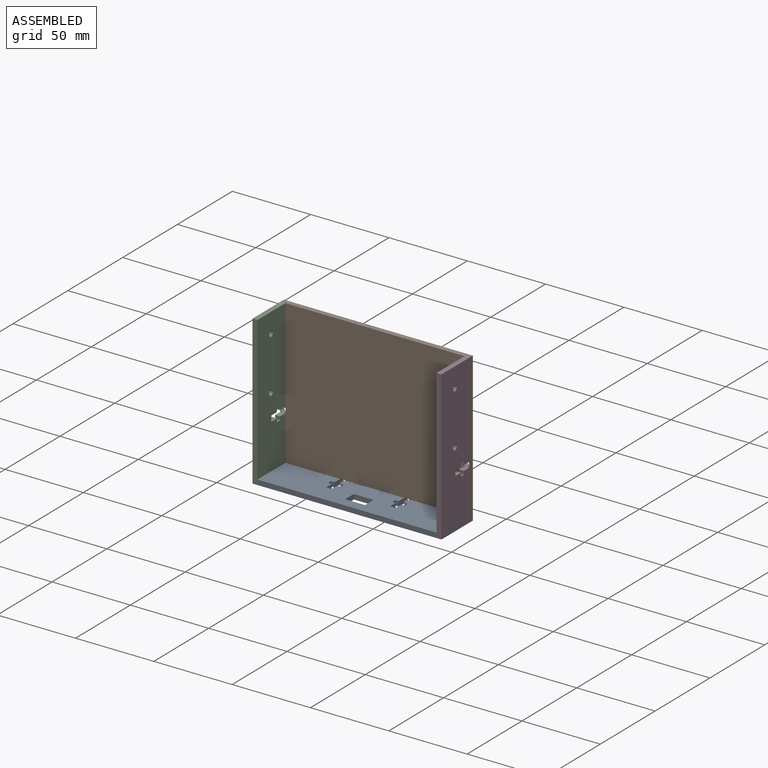
[diagram: subassembly S0 — assembled view]
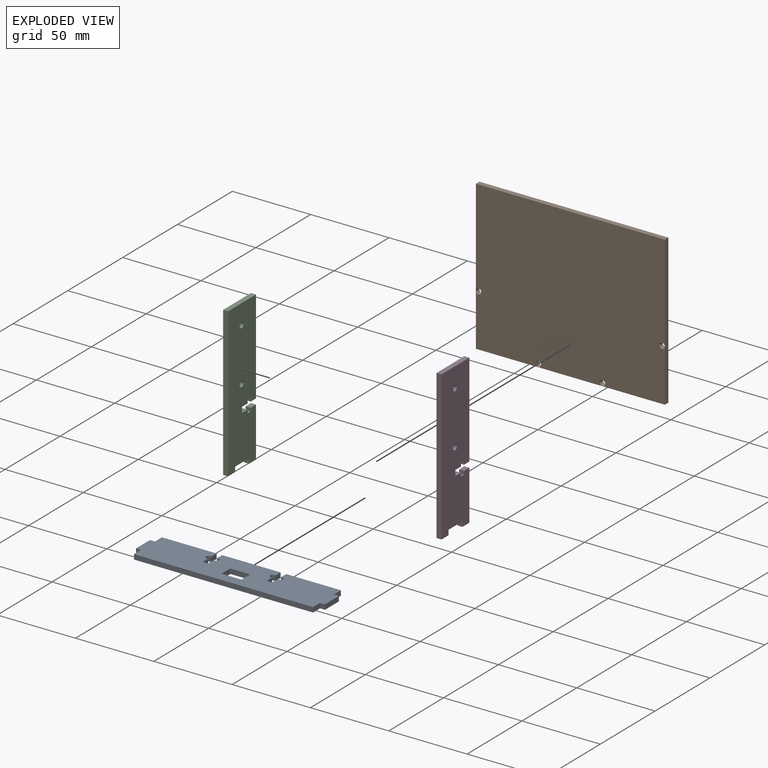
[diagram: subassembly S0 — exploded view]
SUBASSEMBLY S0 TOUR — 4 components, shown here in isolation at its own camera.

INTERNAL MATES
  1. PLANAR "Planar 7": P5 <-> P1, direction (-1.000, 0.000, 0.000) through (-180.97, 68.00, -60.14) mm
  2. PLANAR "Planar 9": P2 <-> P5, direction (-1.000, 0.000, 0.000) through (-180.97, 81.05, -61.08) mm
  3. PLANAR "Planar 6": P7 <-> P1, direction (0.000, -1.000, 0.000) through (-61.91, 55.65, -61.08) mm
  4. PLANAR "Planar 4": P7 <-> P1, direction (0.000, 0.000, -1.000) through (-61.91, 58.83, -108.71) mm
  5. PLANAR "Planar 1": P1 <-> P2, direction (0.000, 0.000, -1.000) through (-126.30, 65.97, -108.71) mm
  6. PLANAR "Planar 8": P5 <-> P1, direction (0.000, -1.000, 0.000) through (-179.39, 55.65, -61.08) mm
  7. PLANAR "Planar 3": P1 <-> P7, direction (1.000, 0.000, 0.000) through (-60.32, 68.35, -107.12) mm
  8. PLANAR "Planar 5": P1 <-> P5, direction (0.000, 0.000, -1.000) through (-120.67, 68.18, -108.71) mm
  9. PLANAR "Planar 2": P1 <-> P2, direction (0.000, 1.000, 0.000) through (-120.65, 81.05, -107.12) mm
  10. PLANAR "Planar 6": P7 <-> P1, direction (0.000, -1.000, 0.000) through (-61.91, 55.65, -61.08) mm
  11. PLANAR "Planar 4": P7 <-> P1, direction (0.000, 0.000, -1.000) through (-61.91, 58.83, -108.71) mm
  12. PLANAR "Planar 9": P2 <-> P5, direction (-1.000, 0.000, 0.000) through (-180.97, 81.05, -61.08) mm
  13. PLANAR "Planar 8": P5 <-> P1, direction (0.000, -1.000, 0.000) through (-179.39, 55.65, -61.08) mm
  14. PLANAR "Planar 3": P1 <-> P7, direction (1.000, 0.000, 0.000) through (-60.32, 68.35, -107.12) mm
  15. PLANAR "Planar 7": P5 <-> P1, direction (-1.000, 0.000, 0.000) through (-180.97, 68.00, -60.14) mm
  16. PLANAR "Planar 1": P1 <-> P2, direction (0.000, 0.000, -1.000) through (-126.30, 65.97, -108.71) mm
  17. PLANAR "Planar 2": P1 <-> P2, direction (0.000, 1.000, 0.000) through (-120.65, 81.05, -107.12) mm
  18. PLANAR "Planar 5": P1 <-> P5, direction (0.000, 0.000, -1.000) through (-120.67, 68.18, -108.71) mm

ASSEMBLY ORDER (within the subassembly)
  1. P7 — the base component [order verified]
  2. P5 [order verified]
  3. P1 [order verified]
  4. P2 [order verified]
Order-tag legend:
  [order verified] — this step's position reverses a verified removal order: the component was checked to insert without passing through the ones already placed.
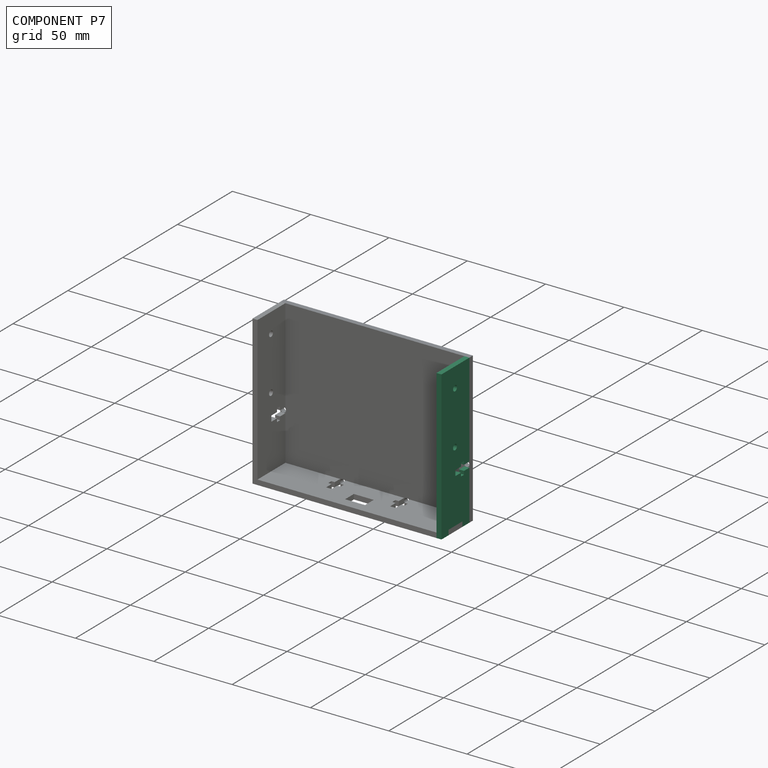
[diagram: component P7 — assembled]
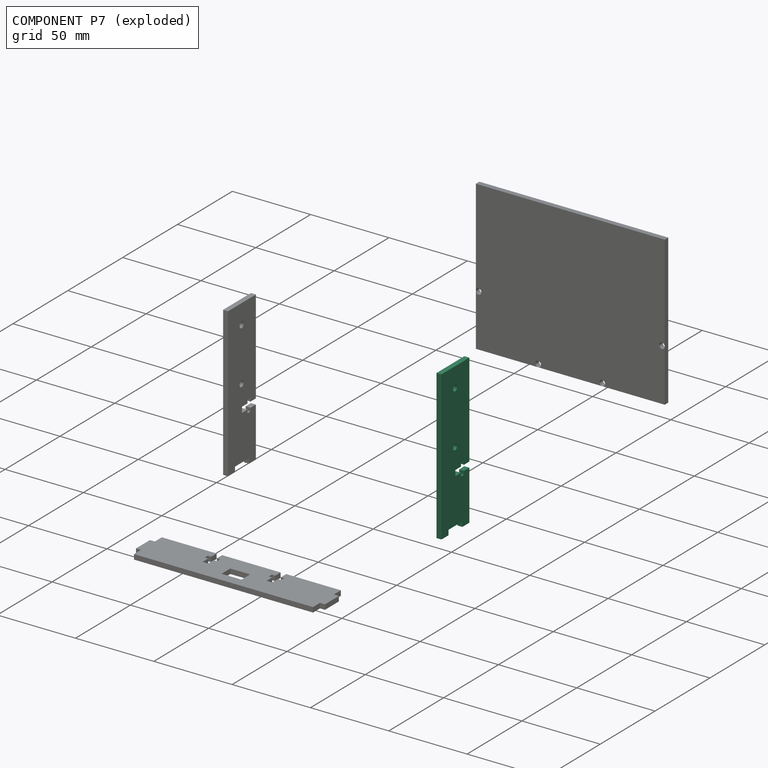
[diagram: component P7 — exploded]
COMPONENT P7 — same part as P5 (CADFS 00168644); its construction recipe is shown at P5.
Held by: PLANAR mate "Planar 6" to P1; PLANAR mate "Planar 4" to P1; PLANAR mate "Planar 3" to P1; PLANAR mate "Planar 6" to P1; PLANAR mate "Planar 4" to P1; PLANAR mate "Planar 3" to P1.
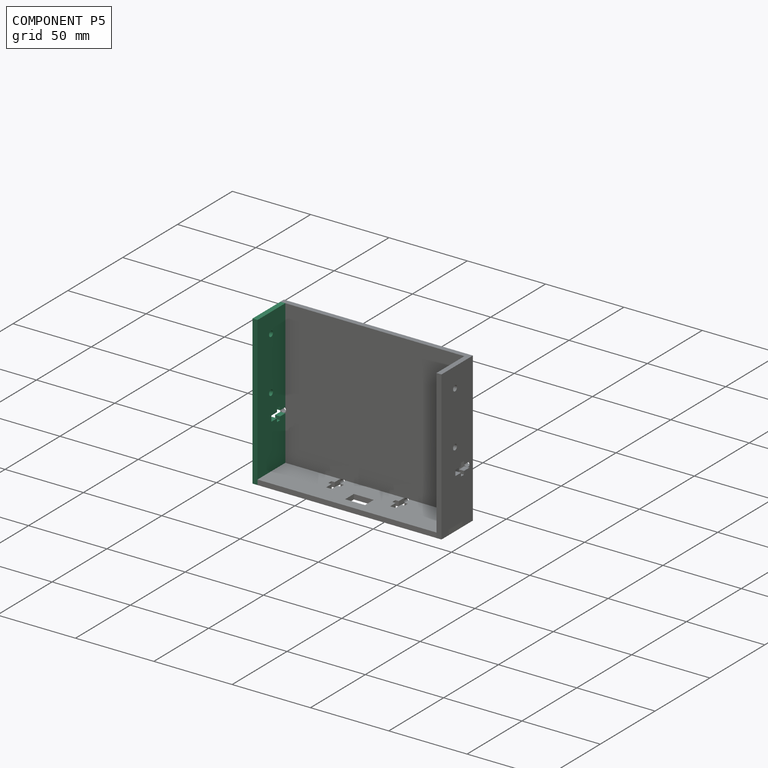
[diagram: component P5 — assembled]
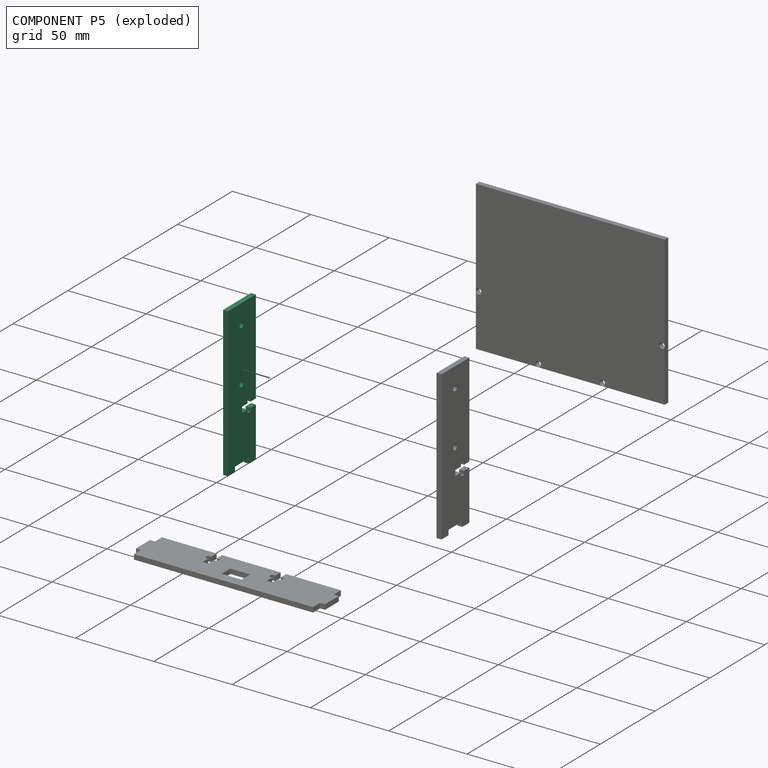
[diagram: component P5 — exploded]
COMPONENT P5 — recipe-attached (CADFS 00168644, mesh-verified: the recipe's output STEP matches this component's geometry to below the mesh-comparison resolution (tessellation chordal tolerance ~0.148 mm)).
Held by: PLANAR mate "Planar 7" to P1; PLANAR mate "Planar 9" to P2; PLANAR mate "Planar 8" to P1; PLANAR mate "Planar 5" to P1; PLANAR mate "Planar 9" to P2; PLANAR mate "Planar 8" to P1; PLANAR mate "Planar 7" to P1; PLANAR mate "Planar 5" to P1.
Construction recipe (FeatureScript — the CAD program that rebuilds this solid; sketch coordinates are in the units given by the * unit suffixes, e.g. mm):

FeatureScript 1511;
import(path : "onshape/std/geometry.fs", version : "1511.0");
import(path : "onshape/std/common.fs", version : "1511.0");
const mm = millimeter;
const VERTEX = EntityType.VERTEX;
const EDGE = EntityType.EDGE;
const FACE = EntityType.FACE;
const BODY = EntityType.BODY;
function v(x, y){return vector(x, y);}
function OD(order){return orderDisambiguation(order);}
function OSD(set){return originalSetDisambiguation(set);}
function TD(topology){return topologyDisambiguation(topology);}
function TDD(query){return trueDependencyDisambiguation(query);}
function sQuery(a, b, c) {return sketchEntityQuery(a, b, c);}

annotation { "Feature Type Name" : "Feature", "Feature Type Description" : "" }
export const myFeature = defineFeature(function(context is Context, id is Id, definition is map)
    precondition{}
    {
        {
            var Q0;
            Q0=qCreatedBy(makeId("Front.planeOp"),FACE);
            var sketch = newSketch(context, id + "F0", { "sketchPlane" : qUnion([Q0])});
            skLineSegment(sketch, "E0.bottom", {"start": v(-44.9, -7.22) * mm, "end": v(50.35, -7.22) * mm});
            skLineSegment(sketch, "E0.top", {"start": v(-44.9, -32.62) * mm, "end": v(-13.15, -32.62) * mm});
            skLineSegment(sketch, "E0.left", {"start": v(-44.9, -7.22) * mm, "end": v(-44.9, -32.62) * mm});
            skLineSegment(sketch, "E0.right", {"start": v(50.35, -7.22) * mm, "end": v(50.35, -32.62) * mm});
            skCircle(sketch, "E1", {"center": v(37.65, -19.57) * mm, "radius": 1.78 * mm});
            skCircle(sketch, "E2", {"center": v(3.67, -19.57) * mm, "radius": 1.78 * mm});
            skLineSegment(sketch, "E3", {"start": v(-9.6, -32.62) * mm, "end": v(-9.6, -27.78) * mm});
            skLineSegment(sketch, "E4", {"start": v(-9.6, -27.78) * mm, "end": v(-7.4, -27.78) * mm});
            skLineSegment(sketch, "E5", {"start": v(-7.4, -27.78) * mm, "end": v(-7.4, -25) * mm});
            skLineSegment(sketch, "E6", {"start": v(-7.4, -25) * mm, "end": v(-9.6, -25) * mm});
            skLineSegment(sketch, "E7", {"start": v(-9.6, -25) * mm, "end": v(-9.6, -19.92) * mm});
            skLineSegment(sketch, "E8", {"start": v(-9.6, -19.92) * mm, "end": v(-13.15, -19.92) * mm});
            skLineSegment(sketch, "E9", {"start": v(-13.15, -25) * mm, "end": v(-15.34, -25) * mm});
            skLineSegment(sketch, "E10", {"start": v(-15.34, -25) * mm, "end": v(-15.34, -27.78) * mm});
            skLineSegment(sketch, "E11", {"start": v(-15.34, -27.78) * mm, "end": v(-13.15, -27.78) * mm});
            skLineSegment(sketch, "E12", {"start": v(-13.15, -27.78) * mm, "end": v(-13.15, -32.62) * mm});
            skLineSegment(sketch, "E13", {"start": v(-13.15, -19.92) * mm, "end": v(-13.15, -25) * mm});
            skLineSegment(sketch, "E14.bottom", {"start": v(-44.9, -13.57) * mm, "end": v(-41.72, -13.57) * mm});
            skLineSegment(sketch, "E14.top", {"start": v(-44.9, -26.27) * mm, "end": v(-41.72, -26.27) * mm});
            skLineSegment(sketch, "E14.left", {"start": v(-44.9, -13.57) * mm, "end": v(-44.9, -26.27) * mm});
            skLineSegment(sketch, "E14.right", {"start": v(-41.72, -13.57) * mm, "end": v(-41.72, -26.27) * mm});
            skLineSegment(sketch, "E15.trimOffspring", {"start": v(-9.6, -32.62) * mm, "end": v(50.35, -32.62) * mm});
            skSolve(sketch);
        }
        {
            var Q0;
            Q0=makeQuery(id+"F0.imprint","IMPRINT",FACE,{"disambiguationData":[TD([[makeQuery(id+"F0.imprint","IMPRINT",EDGE,{"derivedFrom":sQuery(id+"F0.wireOp",EDGE,"E0.bottom")}),-1.0]])]});
            extrude(context, id + "F1", {"entities" : qUnion([Q0]), "endBound" : BoundingType.SYMMETRIC, "depth" : 3.17 * mm});
        }
    });
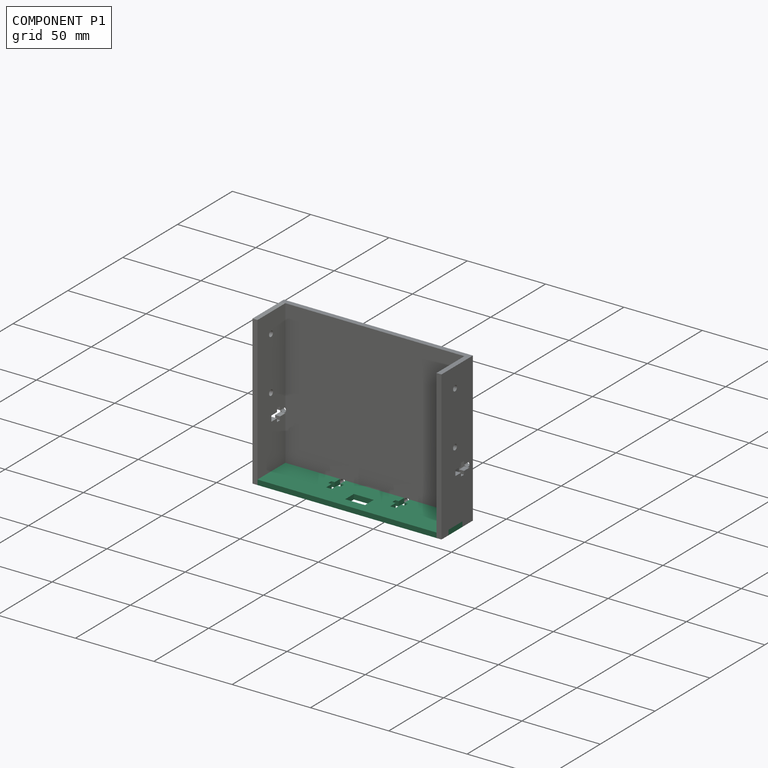
[diagram: component P1 — assembled]
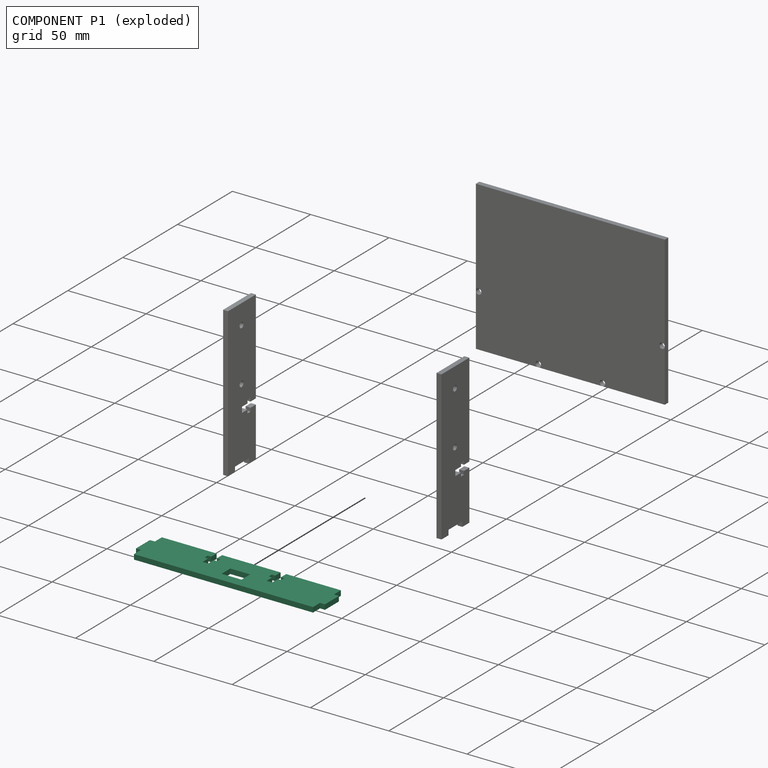
[diagram: component P1 — exploded]
COMPONENT P1 — recipe-attached (CADFS 00168643, mesh-verified: the recipe's output STEP matches this component's geometry to below the mesh-comparison resolution (tessellation chordal tolerance ~0.185 mm)).
Held by: PLANAR mate "Planar 7" to P5; PLANAR mate "Planar 6" to P7; PLANAR mate "Planar 4" to P7; PLANAR mate "Planar 1" to P2; PLANAR mate "Planar 8" to P5; PLANAR mate "Planar 3" to P7; PLANAR mate "Planar 5" to P5; PLANAR mate "Planar 2" to P2; PLANAR mate "Planar 6" to P7; PLANAR mate "Planar 4" to P7; PLANAR mate "Planar 8" to P5; PLANAR mate "Planar 3" to P7; PLANAR mate "Planar 7" to P5; PLANAR mate "Planar 1" to P2; PLANAR mate "Planar 2" to P2; PLANAR mate "Planar 5" to P5.
Construction recipe (FeatureScript — the CAD program that rebuilds this solid; sketch coordinates are in the units given by the * unit suffixes, e.g. mm):

FeatureScript 1511;
import(path : "onshape/std/geometry.fs", version : "1511.0");
import(path : "onshape/std/common.fs", version : "1511.0");
const mm = millimeter;
const VERTEX = EntityType.VERTEX;
const EDGE = EntityType.EDGE;
const FACE = EntityType.FACE;
const BODY = EntityType.BODY;
function v(x, y){return vector(x, y);}
function OD(order){return orderDisambiguation(order);}
function OSD(set){return originalSetDisambiguation(set);}
function TD(topology){return topologyDisambiguation(topology);}
function TDD(query){return trueDependencyDisambiguation(query);}
function sQuery(a, b, c) {return sketchEntityQuery(a, b, c);}

annotation { "Feature Type Name" : "Feature", "Feature Type Description" : "" }
export const myFeature = defineFeature(function(context is Context, id is Id, definition is map)
    precondition{}
    {
        {
            var Q0;
            Q0=qCreatedBy(makeId("Front.planeOp"),FACE);
            var sketch = newSketch(context, id + "F0", { "sketchPlane" : qUnion([Q0])});
            skLineSegment(sketch, "E0.bottom", {"start": v(-57.15, -5.8) * mm, "end": v(57.15, -5.8) * mm});
            skLineSegment(sketch, "E0.top", {"start": v(-57.15, -31.2) * mm, "end": v(-22.23, -31.2) * mm});
            skLineSegment(sketch, "E0.left", {"start": v(-60.33, -12.14) * mm, "end": v(-60.32, -24.84) * mm});
            skLineSegment(sketch, "E0.right", {"start": v(60.33, -12.14) * mm, "end": v(60.33, -24.84) * mm});
            skLineSegment(sketch, "E1", {"start": v(-60.33, -12.14) * mm, "end": v(-57.15, -12.14) * mm});
            skLineSegment(sketch, "E2", {"start": v(-57.15, -12.14) * mm, "end": v(-57.15, -5.8) * mm});
            skLineSegment(sketch, "E3", {"start": v(-60.32, -24.84) * mm, "end": v(-57.15, -24.84) * mm});
            skLineSegment(sketch, "E4", {"start": v(-57.15, -24.84) * mm, "end": v(-57.15, -31.2) * mm});
            skLineSegment(sketch, "E5.bottom", {"start": v(60.33, -24.84) * mm, "end": v(57.15, -24.84) * mm});
            skLineSegment(sketch, "E5.right", {"start": v(57.15, -24.84) * mm, "end": v(57.15, -31.2) * mm});
            skLineSegment(sketch, "E6.top", {"start": v(60.33, -12.14) * mm, "end": v(57.15, -12.14) * mm});
            skLineSegment(sketch, "E6.right", {"start": v(57.15, -5.8) * mm, "end": v(57.15, -12.14) * mm});
            skLineSegment(sketch, "E7", {"start": v(-22.23, -31.2) * mm, "end": v(-22.23, -26.35) * mm});
            skLineSegment(sketch, "E8", {"start": v(-22.23, -26.35) * mm, "end": v(-24.42, -26.35) * mm});
            skLineSegment(sketch, "E9", {"start": v(-24.42, -26.35) * mm, "end": v(-24.42, -23.57) * mm});
            skLineSegment(sketch, "E10", {"start": v(-24.42, -23.57) * mm, "end": v(-22.23, -23.57) * mm});
            skLineSegment(sketch, "E11", {"start": v(-22.23, -23.57) * mm, "end": v(-22.23, -18.5) * mm});
            skLineSegment(sketch, "E12", {"start": v(-22.23, -18.5) * mm, "end": v(-18.67, -18.5) * mm});
            skLineSegment(sketch, "E13", {"start": v(-18.67, -18.5) * mm, "end": v(-18.67, -23.57) * mm});
            skLineSegment(sketch, "E14", {"start": v(-18.67, -23.57) * mm, "end": v(-16.48, -23.57) * mm});
            skLineSegment(sketch, "E15", {"start": v(-16.48, -23.57) * mm, "end": v(-16.48, -26.35) * mm});
            skLineSegment(sketch, "E16", {"start": v(-16.48, -26.35) * mm, "end": v(-18.67, -26.35) * mm});
            skLineSegment(sketch, "E17", {"start": v(-18.67, -26.35) * mm, "end": v(-18.67, -31.2) * mm});
            skLineSegment(sketch, "E18.MirrorCS", {"start": v(22.23, -18.5) * mm, "end": v(18.67, -18.5) * mm});
            skLineSegment(sketch, "E19.MirrorCS", {"start": v(16.48, -23.57) * mm, "end": v(16.48, -26.35) * mm});
            skLineSegment(sketch, "E20.MirrorCS", {"start": v(18.67, -23.57) * mm, "end": v(16.48, -23.57) * mm});
            skLineSegment(sketch, "E21.MirrorCS", {"start": v(24.42, -23.57) * mm, "end": v(22.23, -23.57) * mm});
            skLineSegment(sketch, "E22.MirrorCS", {"start": v(22.23, -26.35) * mm, "end": v(24.42, -26.35) * mm});
            skLineSegment(sketch, "E23.MirrorCS", {"start": v(16.48, -26.35) * mm, "end": v(18.67, -26.35) * mm});
            skLineSegment(sketch, "E24.MirrorCS", {"start": v(24.42, -26.35) * mm, "end": v(24.42, -23.57) * mm});
            skLineSegment(sketch, "E25.MirrorCS", {"start": v(22.23, -23.57) * mm, "end": v(22.23, -18.5) * mm});
            skLineSegment(sketch, "E26.MirrorCS", {"start": v(18.67, -18.5) * mm, "end": v(18.67, -23.57) * mm});
            skLineSegment(sketch, "E27.MirrorCS", {"start": v(18.67, -26.35) * mm, "end": v(18.67, -31.2) * mm});
            skLineSegment(sketch, "E28.MirrorCS", {"start": v(22.23, -31.2) * mm, "end": v(22.23, -26.35) * mm});
            skLineSegment(sketch, "E29.trimOffspring", {"start": v(-18.67, -31.2) * mm, "end": v(18.67, -31.2) * mm});
            skLineSegment(sketch, "E30.trimOffspring", {"start": v(22.23, -31.2) * mm, "end": v(57.15, -31.2) * mm});
            skLineSegment(sketch, "E31.bottom", {"start": v(-5.65, -12.14) * mm, "end": v(7.05, -12.14) * mm});
            skLineSegment(sketch, "E31.top", {"start": v(-5.65, -20.08) * mm, "end": v(7.05, -20.08) * mm});
            skLineSegment(sketch, "E31.left", {"start": v(-5.65, -12.14) * mm, "end": v(-5.65, -20.08) * mm});
            skLineSegment(sketch, "E31.right", {"start": v(7.05, -12.14) * mm, "end": v(7.05, -20.08) * mm});
            skSolve(sketch);
        }
        {
            var Q0;
            Q0 = qSketchRegion(id + "F0", true);
            extrude(context, id + "F1", {"entities" : qUnion([Q0]), "endBound" : BoundingType.SYMMETRIC, "depth" : 3.17 * mm});
        }
    });
